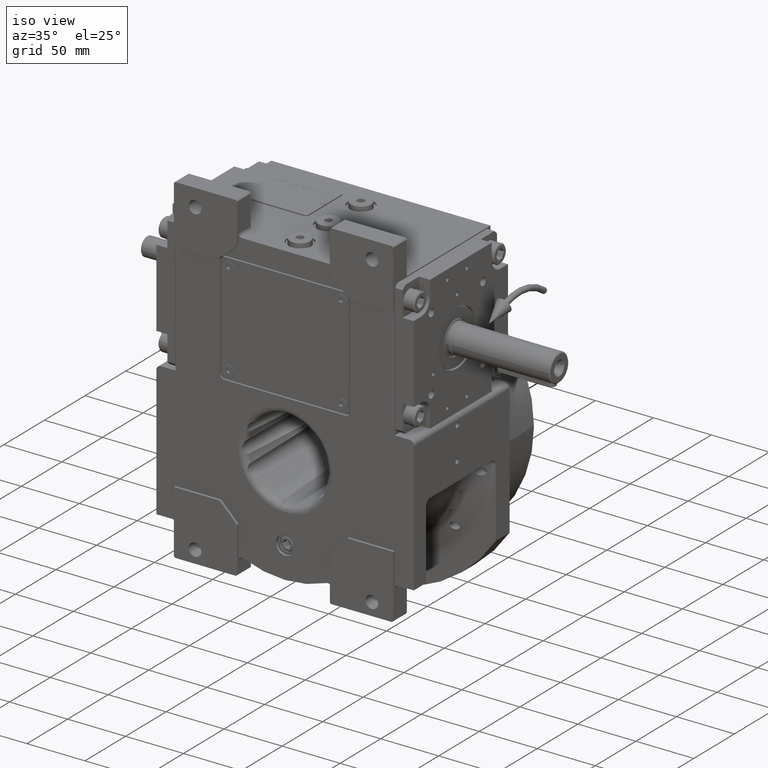
[diagram: clean part render]
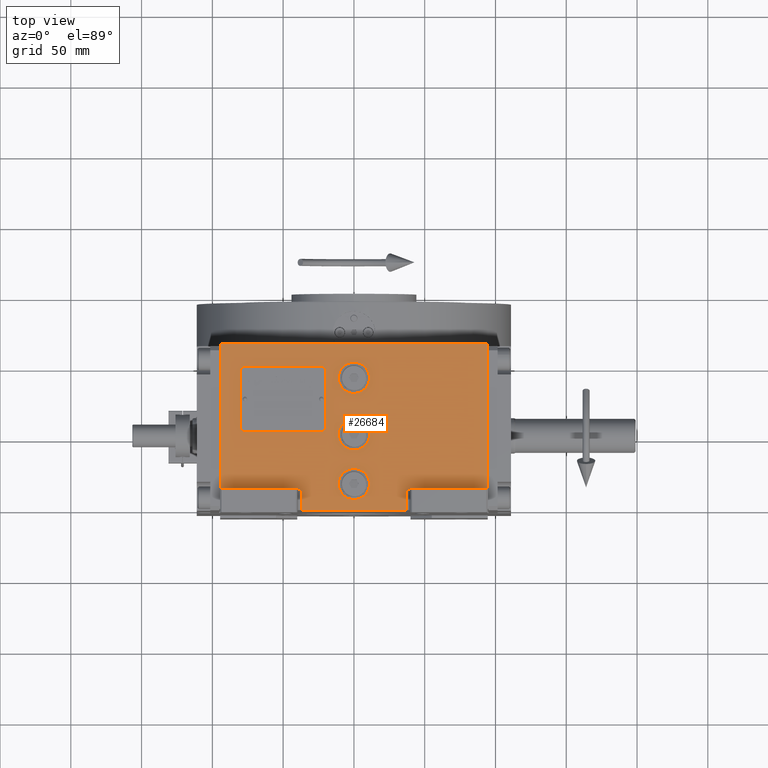
[diagram: tour spotlight — one face highlighted and labeled with its STEP entity id]
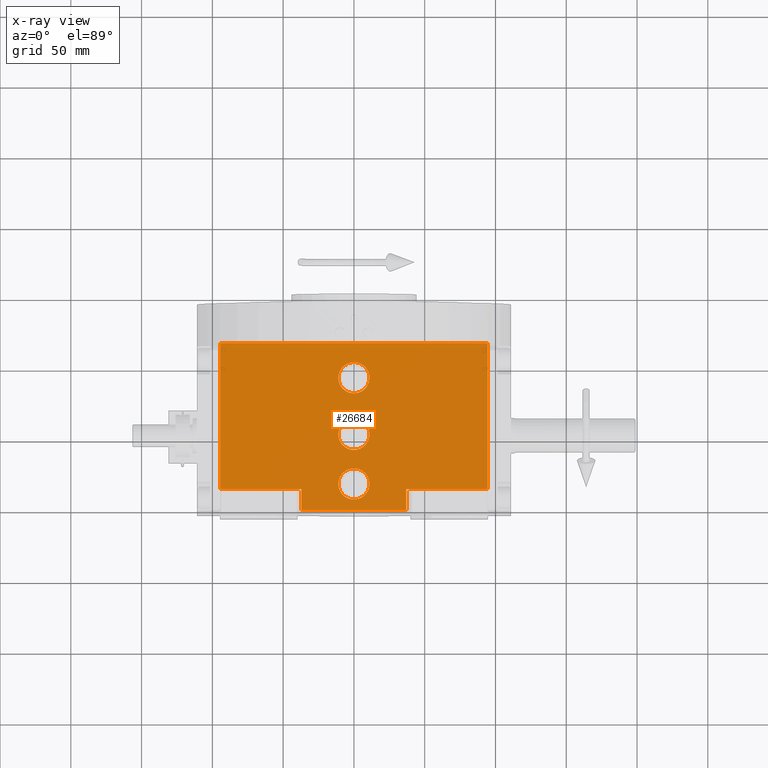
[diagram: x-ray of the same camera — body ghosted, this tour face saturated]
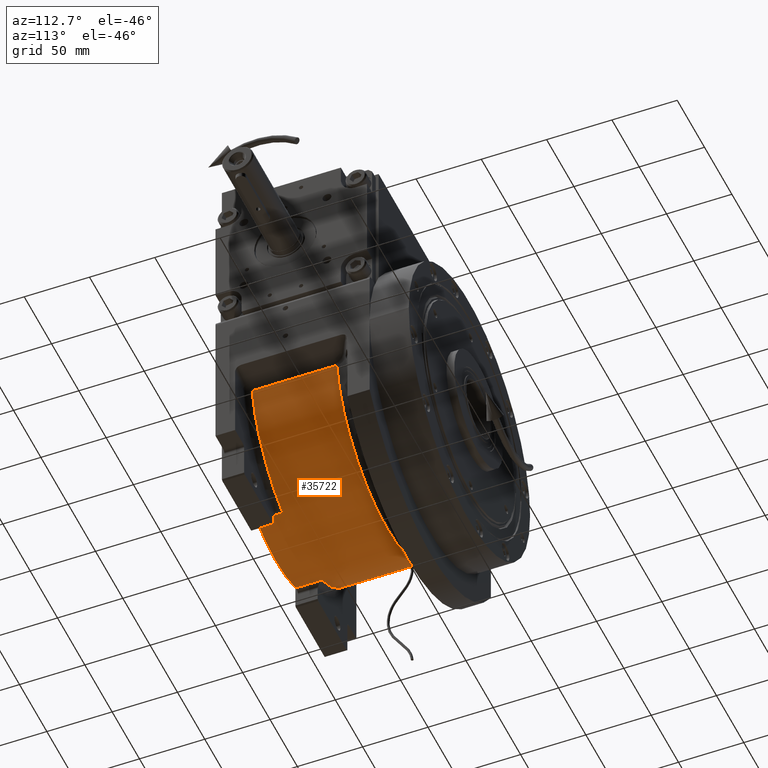
[diagram: tour spotlight — one face highlighted and labeled with its STEP entity id]
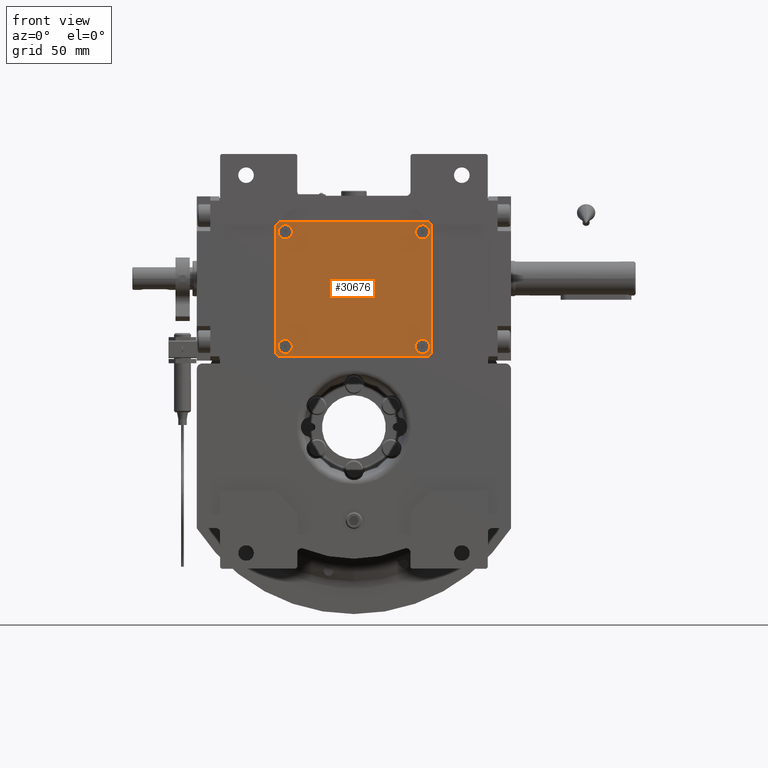
[diagram: tour spotlight — one face highlighted and labeled with its STEP entity id]
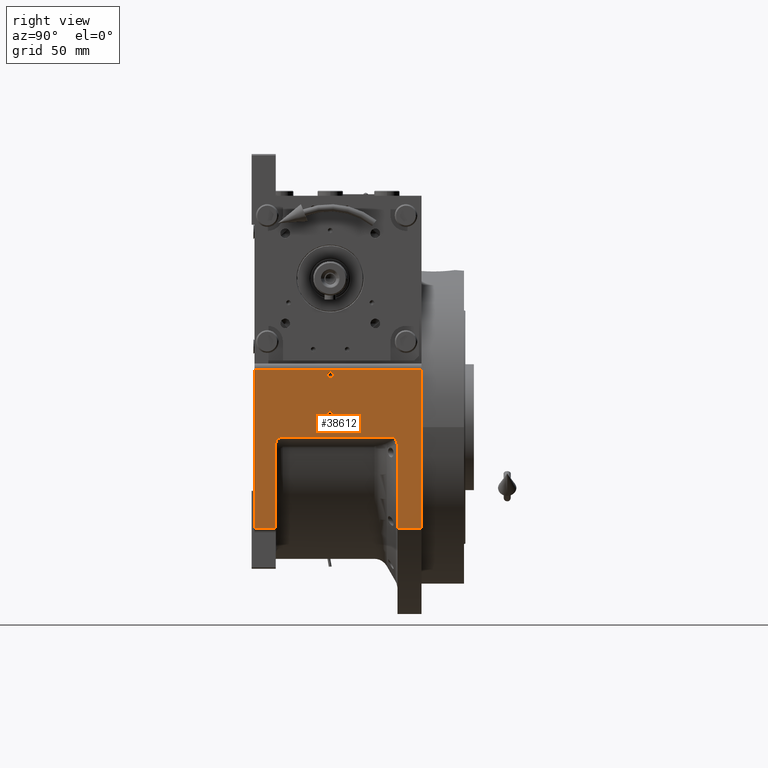
[diagram: tour spotlight — one face highlighted and labeled with its STEP entity id]
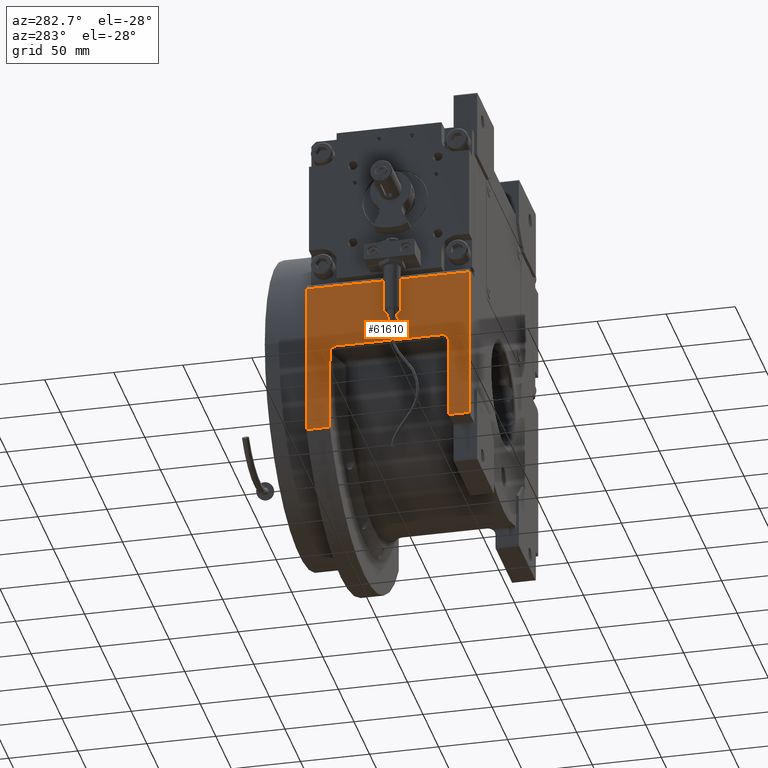
[diagram: tour spotlight — one face highlighted and labeled with its STEP entity id]
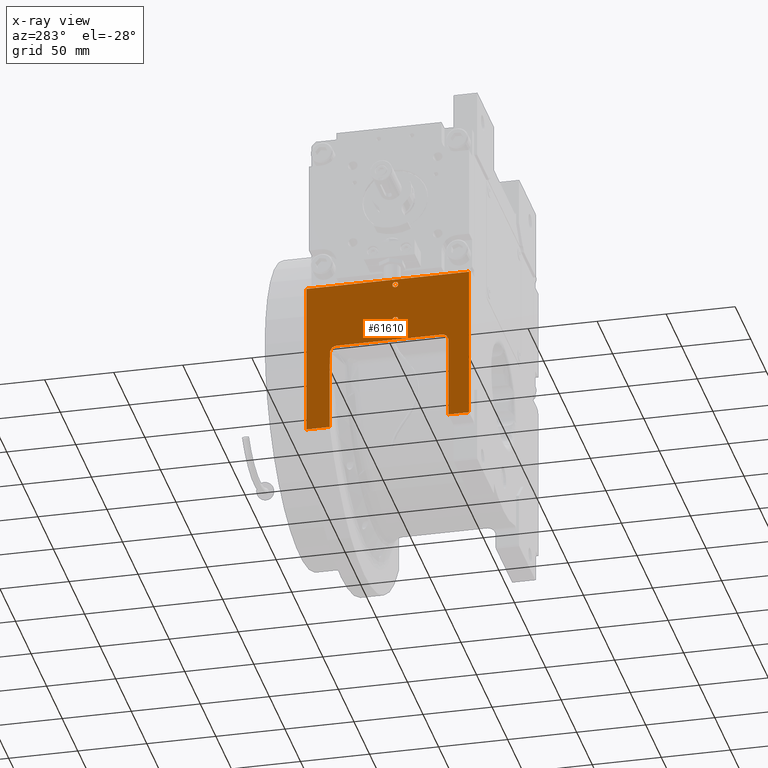
[diagram: x-ray of the same camera — body ghosted, this tour face saturated]
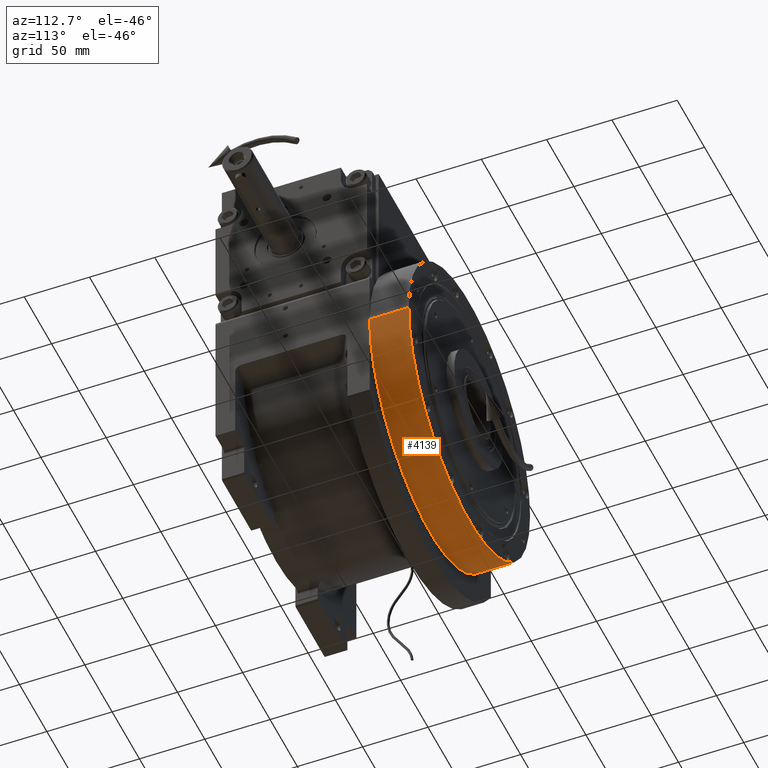
[diagram: tour spotlight — one face highlighted and labeled with its STEP entity id]
A machine part: a face-by-face anatomy tour. The part has 2167 B-rep faces; the first image is the clean iso view, then the 6 largest visible faces are spotlighted one at a time (largest first), each with its STEP entity span.

Face 1 — top view, entity #26684. An x-ray twin of the same camera follows (body ghosted, this face saturated) — the face is partly hidden behind the body. In plain terms, the highlighted planar face has unit normal (0, 0, 1).
Definition (entity closure, byte-faithful):
#107 = ORIENTED_EDGE ( 'NONE', *, *, #43515, .F. ) ;
#995 = EDGE_CURVE ( 'NONE', #52223, #6601, #46901, .T. ) ;
#2281 = VECTOR ( 'NONE', #55261, 1000.000000000000000 ) ;
#2545 = CARTESIAN_POINT ( 'NONE',  ( 36.99999999999934630, -38.50000000000000000, 163.5000000000000000 ) ) ;
#2549 = VERTEX_POINT ( 'NONE', #8123 ) ;
#2800 = VERTEX_POINT ( 'NONE', #24387 ) ;
#2884 = CARTESIAN_POINT ( 'NONE',  ( -36.99999999999929656, -53.50000000000000000, 163.5000000000000000 ) ) ;
#2922 = ORIENTED_EDGE ( 'NONE', *, *, #40360, .F. ) ;
#3017 = EDGE_CURVE ( 'NONE', #24030, #56173, #19945, .T. ) ;
#3325 = CARTESIAN_POINT ( 'NONE',  ( 94.50000000000000000, 64.50000000000000000, 163.5000000000000000 ) ) ;
#3583 = CARTESIAN_POINT ( 'NONE',  ( 11.00000000000000000, 40.00000000000000000, 163.5000000000000000 ) ) ;
#4687 = LINE ( 'NONE', #40028, #32905 ) ;
#4885 = DIRECTION ( 'NONE',  ( 0.000000000000000000, 1.000000000000000000, 0.000000000000000000 ) ) ;
#5394 = VECTOR ( 'NONE', #70473, 1000.000000000000000 ) ;
#5573 = DIRECTION ( 'NONE',  ( 1.000000000000000000, 0.000000000000000000, 0.000000000000000000 ) ) ;
#6601 = VERTEX_POINT ( 'NONE', #48692 ) ;
#8123 = CARTESIAN_POINT ( 'NONE',  ( -94.50000000000000000, 64.50000000000000000, 163.5000000000000000 ) ) ;
#9553 = EDGE_CURVE ( 'NONE', #45362, #13133, #64331, .T. ) ;
#9820 = DIRECTION ( 'NONE',  ( 0.000000000000000000, 0.000000000000000000, 1.000000000000000000 ) ) ;
#10401 = DIRECTION ( 'NONE',  ( 0.000000000000000000, 1.000000000000000000, 0.000000000000000000 ) ) ;
#10900 = DIRECTION ( 'NONE',  ( 0.000000000000000000, 0.000000000000000000, 1.000000000000000000 ) ) ;
#11000 = DIRECTION ( 'NONE',  ( 0.000000000000000000, 0.000000000000000000, 1.000000000000000000 ) ) ;
#11430 = VECTOR ( 'NONE', #23642, 1000.000000000000000 ) ;
#13133 = VERTEX_POINT ( 'NONE', #47713 ) ;
#13332 = CIRCLE ( 'NONE', #53420, 11.00000000000000000 ) ;
#13357 = EDGE_LOOP ( 'NONE', ( #24443, #14341 ) ) ;
#13717 = DIRECTION ( 'NONE',  ( -1.000000000000000000, 0.000000000000000000, 0.000000000000000000 ) ) ;
#13931 = EDGE_LOOP ( 'NONE', ( #33136, #22214, #35140, #70710, #67691, #24968, #25376, #2922 ) ) ;
#14341 = ORIENTED_EDGE ( 'NONE', *, *, #3017, .F. ) ;
#14600 = CARTESIAN_POINT ( 'NONE',  ( 36.99999999999934630, -38.50000000000000000, 163.5000000000000000 ) ) ;
#14808 = CARTESIAN_POINT ( 'NONE',  ( 11.00000000000000000, -1.179289943096200059E-15, 163.5000000000000000 ) ) ;
#15361 = CARTESIAN_POINT ( 'NONE',  ( -11.00000000000000000, 40.00000000000000000, 163.5000000000000000 ) ) ;
#15659 = AXIS2_PLACEMENT_3D ( 'NONE', #27749, #50926, #74101 ) ;
#15838 = PLANE ( 'NONE',  #34536 ) ;
#16084 = ORIENTED_EDGE ( 'NONE', *, *, #16153, .F. ) ;
#16153 = EDGE_CURVE ( 'NONE', #42090, #43376, #13332, .T. ) ;
#16279 = CARTESIAN_POINT ( 'NONE',  ( -36.99999999999929656, -53.50000000000000000, 163.5000000000000000 ) ) ;
#17183 = LINE ( 'NONE', #40390, #11430 ) ;
#17354 = EDGE_LOOP ( 'NONE', ( #107, #16084 ) ) ;
#18846 = CARTESIAN_POINT ( 'NONE',  ( 11.00000000000000000, -35.00000000000000000, 163.5000000000000000 ) ) ;
#19334 = EDGE_LOOP ( 'NONE', ( #31108, #23657 ) ) ;
#19945 = CIRCLE ( 'NONE', #67311, 11.00000000000000000 ) ;
#21226 = CARTESIAN_POINT ( 'NONE',  ( -36.99999999999929656, -38.50000000000000000, 163.5000000000000000 ) ) ;
#22214 = ORIENTED_EDGE ( 'NONE', *, *, #49768, .F. ) ;
#23642 = DIRECTION ( 'NONE',  ( 1.000000000000000000, 0.000000000000000000, 0.000000000000000000 ) ) ;
#23657 = ORIENTED_EDGE ( 'NONE', *, *, #31170, .F. ) ;
#24030 = VERTEX_POINT ( 'NONE', #15361 ) ;
#24387 = CARTESIAN_POINT ( 'NONE',  ( 94.50000000000000000, -38.50000000000000000, 163.5000000000000000 ) ) ;
#24443 = ORIENTED_EDGE ( 'NONE', *, *, #66057, .F. ) ;
#24968 = ORIENTED_EDGE ( 'NONE', *, *, #62182, .F. ) ;
#25376 = ORIENTED_EDGE ( 'NONE', *, *, #69504, .T. ) ;
#26684 = ADVANCED_FACE ( 'NONE', ( #74713, #73596, #74338, #69042 ), #15838, .T. ) ;
#27690 = LINE ( 'NONE', #16279, #49786 ) ;
#27749 = CARTESIAN_POINT ( 'NONE',  ( 0.000000000000000000, -35.00000000000000000, 163.5000000000000000 ) ) ;
#27978 = CARTESIAN_POINT ( 'NONE',  ( -94.50000000000000000, -38.50000000000000000, 163.5000000000000000 ) ) ;
#29424 = DIRECTION ( 'NONE',  ( 0.000000000000000000, 0.000000000000000000, 1.000000000000000000 ) ) ;
#29554 = VECTOR ( 'NONE', #71352, 1000.000000000000000 ) ;
#29620 = VERTEX_POINT ( 'NONE', #3325 ) ;
#31108 = ORIENTED_EDGE ( 'NONE', *, *, #9553, .F. ) ;
#31170 = EDGE_CURVE ( 'NONE', #13133, #45362, #72676, .T. ) ;
#31566 = AXIS2_PLACEMENT_3D ( 'NONE', #38695, #9820, #57286 ) ;
#32307 = DIRECTION ( 'NONE',  ( 0.000000000000000000, 0.000000000000000000, 1.000000000000000000 ) ) ;
#32905 = VECTOR ( 'NONE', #10401, 1000.000000000000000 ) ;
#33136 = ORIENTED_EDGE ( 'NONE', *, *, #995, .T. ) ;
#34377 = CIRCLE ( 'NONE', #65930, 11.00000000000000000 ) ;
#34428 = CARTESIAN_POINT ( 'NONE',  ( -94.50000000000000000, -53.50000000000000000, 163.5000000000000000 ) ) ;
#34536 = AXIS2_PLACEMENT_3D ( 'NONE', #34428, #10900, #5573 ) ;
#34832 = EDGE_CURVE ( 'NONE', #2800, #29620, #4687, .T. ) ;
#35124 = CARTESIAN_POINT ( 'NONE',  ( 0.000000000000000000, 0.000000000000000000, 163.5000000000000000 ) ) ;
#35140 = ORIENTED_EDGE ( 'NONE', *, *, #64677, .T. ) ;
#35756 = DIRECTION ( 'NONE',  ( 1.000000000000000000, 0.000000000000000000, 0.000000000000000000 ) ) ;
#38150 = LINE ( 'NONE', #14600, #2281 ) ;
#38695 = CARTESIAN_POINT ( 'NONE',  ( 0.000000000000000000, -35.00000000000000000, 163.5000000000000000 ) ) ;
#40028 = CARTESIAN_POINT ( 'NONE',  ( 94.50000000000000000, -38.50000000000000000, 163.5000000000000000 ) ) ;
#40360 = EDGE_CURVE ( 'NONE', #52223, #74716, #27690, .T. ) ;
#40390 = CARTESIAN_POINT ( 'NONE',  ( -94.50000000000000000, 64.50000000000000000, 163.5000000000000000 ) ) ;
#42090 = VERTEX_POINT ( 'NONE', #60412 ) ;
#42480 = DIRECTION ( 'NONE',  ( 1.000000000000000000, 0.000000000000000000, 0.000000000000000000 ) ) ;
#42589 = CARTESIAN_POINT ( 'NONE',  ( 0.000000000000000000, 40.00000000000000000, 163.5000000000000000 ) ) ;
#43357 = DIRECTION ( 'NONE',  ( 0.000000000000000000, 0.000000000000000000, 1.000000000000000000 ) ) ;
#43376 = VERTEX_POINT ( 'NONE', #14808 ) ;
#43515 = EDGE_CURVE ( 'NONE', #43376, #42090, #34377, .T. ) ;
#45362 = VERTEX_POINT ( 'NONE', #18846 ) ;
#46250 = EDGE_CURVE ( 'NONE', #2549, #29620, #17183, .T. ) ;
#46789 = CARTESIAN_POINT ( 'NONE',  ( 36.99999999999934630, -38.50000000000000000, 163.5000000000000000 ) ) ;
#46901 = LINE ( 'NONE', #48016, #5394 ) ;
#47713 = CARTESIAN_POINT ( 'NONE',  ( -11.00000000000000000, -35.00000000000000000, 163.5000000000000000 ) ) ;
#48016 = CARTESIAN_POINT ( 'NONE',  ( -36.99999999999929656, -53.50000000000000000, 163.5000000000000000 ) ) ;
#48164 = CARTESIAN_POINT ( 'NONE',  ( -94.50000000000000000, -38.50000000000000000, 163.5000000000000000 ) ) ;
#48692 = CARTESIAN_POINT ( 'NONE',  ( 36.99999999999934630, -53.50000000000000000, 163.5000000000000000 ) ) ;
#49768 = EDGE_CURVE ( 'NONE', #70751, #6601, #38150, .T. ) ;
#49774 = DIRECTION ( 'NONE',  ( 1.000000000000000000, 0.000000000000000000, 0.000000000000000000 ) ) ;
#49786 = VECTOR ( 'NONE', #4885, 1000.000000000000000 ) ;
#49946 = CIRCLE ( 'NONE', #59662, 11.00000000000000000 ) ;
#50926 = DIRECTION ( 'NONE',  ( 0.000000000000000000, 0.000000000000000000, 1.000000000000000000 ) ) ;
#51467 = DIRECTION ( 'NONE',  ( -1.000000000000000000, 0.000000000000000000, 0.000000000000000000 ) ) ;
#52223 = VERTEX_POINT ( 'NONE', #2884 ) ;
#53420 = AXIS2_PLACEMENT_3D ( 'NONE', #35124, #29424, #51467 ) ;
#54487 = VERTEX_POINT ( 'NONE', #70178 ) ;
#54682 = VECTOR ( 'NONE', #35756, 1000.000000000000000 ) ;
#55261 = DIRECTION ( 'NONE',  ( 0.000000000000000000, -1.000000000000000000, 0.000000000000000000 ) ) ;
#55672 = VECTOR ( 'NONE', #67882, 1000.000000000000000 ) ;
#56173 = VERTEX_POINT ( 'NONE', #3583 ) ;
#57286 = DIRECTION ( 'NONE',  ( 1.000000000000000000, 0.000000000000000000, 0.000000000000000000 ) ) ;
#58560 = LINE ( 'NONE', #46789, #54682 ) ;
#59662 = AXIS2_PLACEMENT_3D ( 'NONE', #42589, #32307, #49774 ) ;
#60412 = CARTESIAN_POINT ( 'NONE',  ( -11.00000000000000000, 0.000000000000000000, 163.5000000000000000 ) ) ;
#62182 = EDGE_CURVE ( 'NONE', #54487, #2549, #74702, .T. ) ;
#63040 = CARTESIAN_POINT ( 'NONE',  ( 0.000000000000000000, 0.000000000000000000, 163.5000000000000000 ) ) ;
#64331 = CIRCLE ( 'NONE', #31566, 11.00000000000000000 ) ;
#64508 = LINE ( 'NONE', #48164, #29554 ) ;
#64677 = EDGE_CURVE ( 'NONE', #70751, #2800, #58560, .T. ) ;
#65930 = AXIS2_PLACEMENT_3D ( 'NONE', #63040, #11000, #42480 ) ;
#66057 = EDGE_CURVE ( 'NONE', #56173, #24030, #49946, .T. ) ;
#66904 = CARTESIAN_POINT ( 'NONE',  ( 0.000000000000000000, 40.00000000000000000, 163.5000000000000000 ) ) ;
#67311 = AXIS2_PLACEMENT_3D ( 'NONE', #66904, #43357, #13717 ) ;
#67691 = ORIENTED_EDGE ( 'NONE', *, *, #46250, .F. ) ;
#67882 = DIRECTION ( 'NONE',  ( 0.000000000000000000, 1.000000000000000000, 0.000000000000000000 ) ) ;
#69042 = FACE_OUTER_BOUND ( 'NONE', #13931, .T. ) ;
#69504 = EDGE_CURVE ( 'NONE', #54487, #74716, #64508, .T. ) ;
#70178 = CARTESIAN_POINT ( 'NONE',  ( -94.50000000000000000, -38.50000000000000000, 163.5000000000000000 ) ) ;
#70473 = DIRECTION ( 'NONE',  ( 1.000000000000000000, 0.000000000000000000, 0.000000000000000000 ) ) ;
#70710 = ORIENTED_EDGE ( 'NONE', *, *, #34832, .T. ) ;
#70751 = VERTEX_POINT ( 'NONE', #2545 ) ;
#71352 = DIRECTION ( 'NONE',  ( 1.000000000000000000, 0.000000000000000000, 0.000000000000000000 ) ) ;
#72676 = CIRCLE ( 'NONE', #15659, 11.00000000000000000 ) ;
#73596 = FACE_BOUND ( 'NONE', #19334, .T. ) ;
#74101 = DIRECTION ( 'NONE',  ( -1.000000000000000000, 0.000000000000000000, 0.000000000000000000 ) ) ;
#74338 = FACE_BOUND ( 'NONE', #13357, .T. ) ;
#74702 = LINE ( 'NONE', #27978, #55672 ) ;
#74713 = FACE_BOUND ( 'NONE', #17354, .T. ) ;
#74716 = VERTEX_POINT ( 'NONE', #21226 ) ;

Face 2 — auxiliary view, entity #35722. In plain terms, the highlighted cylindrical surface (partial cylindrical patch) has radius 93 mm, axis along (0, 1, 0).
Definition (entity closure, byte-faithful):
#169 = DIRECTION ( 'NONE',  ( 0.000000000000000000, 0.000000000000000000, 1.000000000000000000 ) ) ;
#2040 = VECTOR ( 'NONE', #13656, 1000.000000000000000 ) ;
#2643 = DIRECTION ( 'NONE',  ( -0.3854166666666672403, 0.000000000000000000, -0.9227426472508764022 ) ) ;
#5305 = DIRECTION ( 'NONE',  ( -0.3854166666666659080, 0.000000000000000000, -0.9227426472508768462 ) ) ;
#9798 = ORIENTED_EDGE ( 'NONE', *, *, #28388, .F. ) ;
#9993 = CARTESIAN_POINT ( 'NONE',  ( 35.84375000000000000, -53.50000000000000000, -85.81506619433150718 ) ) ;
#10540 = CIRCLE ( 'NONE', #36010, 92.99999999999995737 ) ;
#10855 = DIRECTION ( 'NONE',  ( 5.743225055535190204E-15, 1.000000000000000000, 2.439003765979129920E-14 ) ) ;
#11057 = CARTESIAN_POINT ( 'NONE',  ( -91.75016228508779648, -33.50000000000000000, -15.19564808292360070 ) ) ;
#13534 = ORIENTED_EDGE ( 'NONE', *, *, #33215, .F. ) ;
#13656 = DIRECTION ( 'NONE',  ( 0.000000000000000000, 1.000000000000000000, 0.000000000000000000 ) ) ;
#14891 = LINE ( 'NONE', #56696, #27370 ) ;
#17778 = DIRECTION ( 'NONE',  ( 0.000000000000000000, 1.000000000000000000, 0.000000000000000000 ) ) ;
#18319 = AXIS2_PLACEMENT_3D ( 'NONE', #74790, #17778, #64879 ) ;
#20147 = EDGE_CURVE ( 'NONE', #23686, #34594, #14891, .T. ) ;
#21030 = CIRCLE ( 'NONE', #63512, 93.00000000000001421 ) ;
#22127 = ORIENTED_EDGE ( 'NONE', *, *, #46785, .T. ) ;
#22197 = CARTESIAN_POINT ( 'NONE',  ( -4.517455316885850268E-28, -53.50000000000000000, 0.000000000000000000 ) ) ;
#23361 = CARTESIAN_POINT ( 'NONE',  ( 91.75016228501930016, 31.21878281274259948, -15.19564808333685058 ) ) ;
#23686 = VERTEX_POINT ( 'NONE', #65303 ) ;
#25411 = AXIS2_PLACEMENT_3D ( 'NONE', #50752, #10855, #34016 ) ;
#27312 = CARTESIAN_POINT ( 'NONE',  ( 91.75016228514499517, -33.50000000000000000, -15.19564808257825028 ) ) ;
#27370 = VECTOR ( 'NONE', #55566, 1000.000000000000000 ) ;
#28388 = EDGE_CURVE ( 'NONE', #23686, #67118, #10540, .T. ) ;
#30523 = VECTOR ( 'NONE', #64591, 1000.000000000000000 ) ;
#32898 = LINE ( 'NONE', #51123, #63657 ) ;
#33032 = DIRECTION ( 'NONE',  ( 0.000000000000000000, -1.000000000000000000, 0.000000000000000000 ) ) ;
#33215 = EDGE_CURVE ( 'NONE', #33264, #47780, #63057, .T. ) ;
#33264 = VERTEX_POINT ( 'NONE', #23361 ) ;
#34016 = DIRECTION ( 'NONE',  ( 0.9865608847851539132, -1.678764654171103455E-15, -0.1633940654122239822 ) ) ;
#34046 = ORIENTED_EDGE ( 'NONE', *, *, #20147, .T. ) ;
#34594 = VERTEX_POINT ( 'NONE', #41973 ) ;
#35443 = EDGE_CURVE ( 'NONE', #60216, #67118, #47126, .T. ) ;
#35722 = ADVANCED_FACE ( 'NONE', ( #51466 ), #45019, .T. ) ;
#36010 = AXIS2_PLACEMENT_3D ( 'NONE', #49002, #33032, #2643 ) ;
#36589 = EDGE_CURVE ( 'NONE', #34594, #60390, #21030, .T. ) ;
#39039 = AXIS2_PLACEMENT_3D ( 'NONE', #22197, #39322, #169 ) ;
#39141 = ORIENTED_EDGE ( 'NONE', *, *, #36589, .T. ) ;
#39322 = DIRECTION ( 'NONE',  ( 0.000000000000000000, 1.000000000000000000, 0.000000000000000000 ) ) ;
#40457 = EDGE_CURVE ( 'NONE', #52579, #60216, #46214, .T. ) ;
#41417 = CARTESIAN_POINT ( 'NONE',  ( 35.84375000000000000, -33.50000000000000000, -85.81506619433150718 ) ) ;
#41973 = CARTESIAN_POINT ( 'NONE',  ( -35.84375000000000000, -33.50000000000000000, -85.81506619433150718 ) ) ;
#42543 = LINE ( 'NONE', #65706, #2040 ) ;
#43479 = ORIENTED_EDGE ( 'NONE', *, *, #49488, .T. ) ;
#45019 = CYLINDRICAL_SURFACE ( 'NONE', #39039, 93.00000000000000000 ) ;
#46214 = CIRCLE ( 'NONE', #18319, 93.00000000000001421 ) ;
#46785 = EDGE_CURVE ( 'NONE', #33264, #52579, #32898, .T. ) ;
#47126 = LINE ( 'NONE', #41417, #30523 ) ;
#47780 = VERTEX_POINT ( 'NONE', #52069 ) ;
#49002 = CARTESIAN_POINT ( 'NONE',  ( 1.421085471520200056E-14, -53.50000000000000000, -4.263256414560599853E-14 ) ) ;
#49439 = CARTESIAN_POINT ( 'NONE',  ( 35.84375000000000000, -33.50000000000000000, -85.81506619433150718 ) ) ;
#49488 = EDGE_CURVE ( 'NONE', #60390, #47780, #42543, .T. ) ;
#50752 = CARTESIAN_POINT ( 'NONE',  ( 1.421085471520200056E-14, 31.21878281274215183, 0.000000000000000000 ) ) ;
#51123 = CARTESIAN_POINT ( 'NONE',  ( 91.75016228501930016, 31.21878281274199907, -15.19564808333685058 ) ) ;
#51466 = FACE_OUTER_BOUND ( 'NONE', #74521, .T. ) ;
#52069 = CARTESIAN_POINT ( 'NONE',  ( -91.75030103113060420, 31.21878279875124917, -15.19503959111690072 ) ) ;
#52579 = VERTEX_POINT ( 'NONE', #27312 ) ;
#55566 = DIRECTION ( 'NONE',  ( 1.776356839400250070E-15, 1.000000000000000000, -7.105427357601000281E-16 ) ) ;
#56074 = DIRECTION ( 'NONE',  ( 0.000000000000000000, -1.000000000000000000, 0.000000000000000000 ) ) ;
#56627 = DIRECTION ( 'NONE',  ( 0.000000000000000000, 1.000000000000000000, 0.000000000000000000 ) ) ;
#56696 = CARTESIAN_POINT ( 'NONE',  ( -35.84375000000000000, -53.50000000000000000, -85.81506619433150718 ) ) ;
#57002 = CARTESIAN_POINT ( 'NONE',  ( -5.684341886080798963E-14, -33.50000000000000000, -4.973799150320699408E-14 ) ) ;
#60216 = VERTEX_POINT ( 'NONE', #49439 ) ;
#60390 = VERTEX_POINT ( 'NONE', #11057 ) ;
#63057 = CIRCLE ( 'NONE', #25411, 93.00000000000001421 ) ;
#63512 = AXIS2_PLACEMENT_3D ( 'NONE', #57002, #56627, #5305 ) ;
#63657 = VECTOR ( 'NONE', #56074, 1000.000000000000000 ) ;
#64591 = DIRECTION ( 'NONE',  ( 0.000000000000000000, -1.000000000000000000, 0.000000000000000000 ) ) ;
#64879 = DIRECTION ( 'NONE',  ( 0.9865608847878558629, 0.000000000000000000, -0.1633940653959109757 ) ) ;
#65303 = CARTESIAN_POINT ( 'NONE',  ( -35.84375000000000000, -53.50000000000000000, -85.81506619433150718 ) ) ;
#65706 = CARTESIAN_POINT ( 'NONE',  ( -91.75016228501930016, -33.50000000000000000, -15.19564808333695183 ) ) ;
#67118 = VERTEX_POINT ( 'NONE', #9993 ) ;
#71294 = ORIENTED_EDGE ( 'NONE', *, *, #40457, .T. ) ;
#74521 = EDGE_LOOP ( 'NONE', ( #9798, #34046, #39141, #43479, #13534, #22127, #71294, #74633 ) ) ;
#74633 = ORIENTED_EDGE ( 'NONE', *, *, #35443, .T. ) ;
#74790 = CARTESIAN_POINT ( 'NONE',  ( 1.421085471520200056E-14, -33.50000000000000000, 1.421085471520200056E-14 ) ) ;

Face 3 — front view, entity #30676. In plain terms, the highlighted planar face has unit normal (0, -1, -0).
Definition (entity closure, byte-faithful):
#1266 = DIRECTION ( 'NONE',  ( -1.000000000000000000, -1.541976423090496028E-15, 0.000000000000000000 ) ) ;
#1542 = VECTOR ( 'NONE', #10464, 1000.000000000000114 ) ;
#2062 = VERTEX_POINT ( 'NONE', #29608 ) ;
#2548 = ORIENTED_EDGE ( 'NONE', *, *, #30169, .T. ) ;
#2581 = DIRECTION ( 'NONE',  ( 0.7071067811865474617, 0.7071067811865474617, 9.367723249499506431E-31 ) ) ;
#2962 = VERTEX_POINT ( 'NONE', #8036 ) ;
#3262 = VERTEX_POINT ( 'NONE', #30009 ) ;
#3478 = VERTEX_POINT ( 'NONE', #68717 ) ;
#3643 = CARTESIAN_POINT ( 'NONE',  ( -54.99999999999973710, 45.50000000000000000, 3.000000000000266454 ) ) ;
#4403 = DIRECTION ( 'NONE',  ( -9.367723249499515189E-31, -1.000000000000000000, 0.000000000000000000 ) ) ;
#5734 = CARTESIAN_POINT ( 'NONE',  ( -52.99999999999973710, 47.50000000000000000, 3.000000000000259348 ) ) ;
#6286 = VERTEX_POINT ( 'NONE', #44575 ) ;
#6664 = AXIS2_PLACEMENT_3D ( 'NONE', #19099, #72296, #1266 ) ;
#7549 = CARTESIAN_POINT ( 'NONE',  ( 55.00000000000000000, -45.50000000000000000, 3.000000000000002665 ) ) ;
#7556 = ORIENTED_EDGE ( 'NONE', *, *, #16313, .T. ) ;
#8036 = CARTESIAN_POINT ( 'NONE',  ( 44.00000000000026290, -40.50000000000000000, 2.999999999999995559 ) ) ;
#8090 = EDGE_CURVE ( 'NONE', #21296, #48525, #29987, .T. ) ;
#8207 = LINE ( 'NONE', #37457, #34987 ) ;
#8850 = DIRECTION ( 'NONE',  ( 1.000000000000000000, 9.367723249499515189E-31, 9.255241265799875595E-31 ) ) ;
#9148 = AXIS2_PLACEMENT_3D ( 'NONE', #56830, #74666, #75039 ) ;
#9782 = VECTOR ( 'NONE', #30061, 1000.000000000000000 ) ;
#10343 = DIRECTION ( 'NONE',  ( -1.000000000000000000, -1.541976423090496028E-15, 0.000000000000000000 ) ) ;
#10464 = DIRECTION ( 'NONE',  ( 0.7071067811865474617, -0.7071067811865474617, 3.697785493223490101E-32 ) ) ;
#11015 = EDGE_CURVE ( 'NONE', #6286, #67762, #73174, .T. ) ;
#11024 = DIRECTION ( 'NONE',  ( 1.000000000000000000, 1.541976423090496028E-15, 0.000000000000000000 ) ) ;
#11089 = CARTESIAN_POINT ( 'NONE',  ( 48.50000000000026290, 40.49999999999999289, 3.000000000000002665 ) ) ;
#11629 = EDGE_CURVE ( 'NONE', #67725, #6286, #33694, .T. ) ;
#12675 = CIRCLE ( 'NONE', #55135, 4.499999999999997335 ) ;
#12786 = ORIENTED_EDGE ( 'NONE', *, *, #11629, .T. ) ;
#12961 = EDGE_LOOP ( 'NONE', ( #54098, #62847 ) ) ;
#13279 = CARTESIAN_POINT ( 'NONE',  ( -48.49999999999973710, 40.49999999999999289, 3.000000000000259348 ) ) ;
#13790 = DIRECTION ( 'NONE',  ( 1.000000000000000000, 9.367723249499515189E-31, 9.255241265799875595E-31 ) ) ;
#13796 = PLANE ( 'NONE',  #14356 ) ;
#14356 = AXIS2_PLACEMENT_3D ( 'NONE', #66611, #14551, #8850 ) ;
#14551 = DIRECTION ( 'NONE',  ( -9.255241265799875595E-31, -1.734010775707216474E-60, 1.000000000000000000 ) ) ;
#14684 = EDGE_CURVE ( 'NONE', #67762, #27438, #39333, .T. ) ;
#15356 = VECTOR ( 'NONE', #13790, 1000.000000000000000 ) ;
#15677 = AXIS2_PLACEMENT_3D ( 'NONE', #43448, #20996, #73068 ) ;
#16313 = EDGE_CURVE ( 'NONE', #27438, #2062, #65479, .T. ) ;
#17240 = EDGE_CURVE ( 'NONE', #2062, #23577, #72515, .T. ) ;
#17805 = CARTESIAN_POINT ( 'NONE',  ( 48.50000000000026290, 40.49999999999999289, 3.000000000000002665 ) ) ;
#19099 = CARTESIAN_POINT ( 'NONE',  ( 48.50000000000026290, -40.50000000000000000, 2.999999999999738876 ) ) ;
#19498 = FACE_BOUND ( 'NONE', #62802, .T. ) ;
#19791 = VERTEX_POINT ( 'NONE', #63587 ) ;
#20154 = ORIENTED_EDGE ( 'NONE', *, *, #8090, .T. ) ;
#20802 = VERTEX_POINT ( 'NONE', #47066 ) ;
#20996 = DIRECTION ( 'NONE',  ( 9.255241265799875595E-31, 0.000000000000000000, 1.000000000000000000 ) ) ;
#21296 = VERTEX_POINT ( 'NONE', #42305 ) ;
#22281 = AXIS2_PLACEMENT_3D ( 'NONE', #74094, #39904, #11024 ) ;
#22386 = DIRECTION ( 'NONE',  ( 1.000000000000000000, 1.541976423090496028E-15, 0.000000000000000000 ) ) ;
#23577 = VERTEX_POINT ( 'NONE', #7549 ) ;
#24603 = CIRCLE ( 'NONE', #40414, 4.499999999999997335 ) ;
#27438 = VERTEX_POINT ( 'NONE', #73042 ) ;
#28575 = CIRCLE ( 'NONE', #9148, 4.499999999999997335 ) ;
#28911 = CARTESIAN_POINT ( 'NONE',  ( -55.00000000000000000, -45.49999999999973710, 3.000000000000266454 ) ) ;
#28979 = VECTOR ( 'NONE', #40643, 1000.000000000000114 ) ;
#29020 = EDGE_CURVE ( 'NONE', #49815, #3478, #32427, .T. ) ;
#29608 = CARTESIAN_POINT ( 'NONE',  ( 53.00000000000000000, -47.50000000000000000, 3.000000000000002665 ) ) ;
#29686 = CARTESIAN_POINT ( 'NONE',  ( 53.00000000000026290, 47.50000000000000000, 3.000000000000002665 ) ) ;
#29829 = AXIS2_PLACEMENT_3D ( 'NONE', #13279, #59630, #61115 ) ;
#29987 = LINE ( 'NONE', #35309, #28979 ) ;
#30009 = CARTESIAN_POINT ( 'NONE',  ( -52.99999999999973710, -40.49999999999973710, 3.000000000000002665 ) ) ;
#30061 = DIRECTION ( 'NONE',  ( -1.000000000000000000, -9.367723249499515189E-31, -9.255241265799875595E-31 ) ) ;
#30126 = VECTOR ( 'NONE', #2581, 1000.000000000000114 ) ;
#30169 = EDGE_CURVE ( 'NONE', #23577, #21296, #8207, .T. ) ;
#30540 = DIRECTION ( 'NONE',  ( 9.255241265799875595E-31, 0.000000000000000000, 1.000000000000000000 ) ) ;
#30676 = ADVANCED_FACE ( 'NONE', ( #48393, #19498, #65853, #43438, #60900 ), #13796, .T. ) ;
#30923 = EDGE_LOOP ( 'NONE', ( #52166, #34645 ) ) ;
#31081 = VERTEX_POINT ( 'NONE', #61948 ) ;
#31468 = CIRCLE ( 'NONE', #15677, 4.499999999999997335 ) ;
#32067 = CARTESIAN_POINT ( 'NONE',  ( 53.00000000000026290, 47.50000000000000000, 3.000000000000002665 ) ) ;
#32427 = CIRCLE ( 'NONE', #67623, 4.499999999999997335 ) ;
#33694 = LINE ( 'NONE', #40526, #58711 ) ;
#34089 = ORIENTED_EDGE ( 'NONE', *, *, #17240, .T. ) ;
#34621 = ORIENTED_EDGE ( 'NONE', *, *, #64638, .T. ) ;
#34645 = ORIENTED_EDGE ( 'NONE', *, *, #48069, .F. ) ;
#34987 = VECTOR ( 'NONE', #49219, 1000.000000000000000 ) ;
#35309 = CARTESIAN_POINT ( 'NONE',  ( 55.00000000000026290, 45.50000000000000000, 3.000000000000002665 ) ) ;
#35561 = DIRECTION ( 'NONE',  ( -0.7071067811865474617, -0.7071067811865474617, -9.367723249499506431E-31 ) ) ;
#36340 = CARTESIAN_POINT ( 'NONE',  ( 53.00000000000026290, 40.49999999999999289, 3.000000000000002665 ) ) ;
#36587 = EDGE_CURVE ( 'NONE', #19791, #3262, #55049, .T. ) ;
#37182 = EDGE_CURVE ( 'NONE', #31081, #2962, #31468, .T. ) ;
#37457 = CARTESIAN_POINT ( 'NONE',  ( 55.00000000000000000, -45.50000000000000000, 3.000000000000002665 ) ) ;
#39333 = LINE ( 'NONE', #62496, #1542 ) ;
#39904 = DIRECTION ( 'NONE',  ( 9.255241265799875595E-31, 0.000000000000000000, 1.000000000000000000 ) ) ;
#40414 = AXIS2_PLACEMENT_3D ( 'NONE', #11089, #57066, #10343 ) ;
#40526 = CARTESIAN_POINT ( 'NONE',  ( -52.99999999999973710, 47.50000000000000000, 3.000000000000259348 ) ) ;
#40643 = DIRECTION ( 'NONE',  ( -0.7071067811865474617, 0.7071067811865474617, -3.697785493223490101E-32 ) ) ;
#42305 = CARTESIAN_POINT ( 'NONE',  ( 55.00000000000026290, 45.50000000000000000, 3.000000000000002665 ) ) ;
#43255 = CARTESIAN_POINT ( 'NONE',  ( 53.00000000000000000, -47.50000000000000000, 3.000000000000002665 ) ) ;
#43438 = FACE_BOUND ( 'NONE', #49587, .T. ) ;
#43448 = CARTESIAN_POINT ( 'NONE',  ( 48.50000000000026290, -40.50000000000000000, 2.999999999999738876 ) ) ;
#44546 = ORIENTED_EDGE ( 'NONE', *, *, #53308, .F. ) ;
#44561 = ORIENTED_EDGE ( 'NONE', *, *, #37182, .F. ) ;
#44575 = CARTESIAN_POINT ( 'NONE',  ( -54.99999999999973710, 45.50000000000000000, 3.000000000000266454 ) ) ;
#45664 = LINE ( 'NONE', #29686, #9782 ) ;
#47066 = CARTESIAN_POINT ( 'NONE',  ( 44.00000000000026290, 40.49999999999999289, 3.000000000000002665 ) ) ;
#48069 = EDGE_CURVE ( 'NONE', #3478, #49815, #51678, .T. ) ;
#48393 = FACE_OUTER_BOUND ( 'NONE', #57597, .T. ) ;
#48525 = VERTEX_POINT ( 'NONE', #32067 ) ;
#49219 = DIRECTION ( 'NONE',  ( 9.367723249499515189E-31, 1.000000000000000000, 0.000000000000000000 ) ) ;
#49363 = ORIENTED_EDGE ( 'NONE', *, *, #51667, .F. ) ;
#49555 = CARTESIAN_POINT ( 'NONE',  ( -43.99999999999973710, 40.49999999999999289, 3.000000000000009770 ) ) ;
#49587 = EDGE_LOOP ( 'NONE', ( #44561, #44546 ) ) ;
#49815 = VERTEX_POINT ( 'NONE', #49555 ) ;
#51667 = EDGE_CURVE ( 'NONE', #20802, #55778, #24603, .T. ) ;
#51678 = CIRCLE ( 'NONE', #29829, 4.499999999999997335 ) ;
#52166 = ORIENTED_EDGE ( 'NONE', *, *, #29020, .F. ) ;
#53308 = EDGE_CURVE ( 'NONE', #2962, #31081, #72184, .T. ) ;
#54098 = ORIENTED_EDGE ( 'NONE', *, *, #36587, .F. ) ;
#55049 = CIRCLE ( 'NONE', #22281, 4.499999999999997335 ) ;
#55135 = AXIS2_PLACEMENT_3D ( 'NONE', #17805, #68772, #22386 ) ;
#55202 = EDGE_CURVE ( 'NONE', #55778, #20802, #12675, .T. ) ;
#55778 = VERTEX_POINT ( 'NONE', #36340 ) ;
#56830 = CARTESIAN_POINT ( 'NONE',  ( -48.49999999999973710, -40.49999999999973710, 3.000000000000002665 ) ) ;
#57066 = DIRECTION ( 'NONE',  ( 9.255241265799875595E-31, 0.000000000000000000, 1.000000000000000000 ) ) ;
#57351 = VECTOR ( 'NONE', #4403, 1000.000000000000000 ) ;
#57597 = EDGE_LOOP ( 'NONE', ( #2548, #20154, #34621, #12786, #58119, #60863, #7556, #34089 ) ) ;
#57925 = CARTESIAN_POINT ( 'NONE',  ( -48.49999999999973710, 40.49999999999999289, 3.000000000000259348 ) ) ;
#58119 = ORIENTED_EDGE ( 'NONE', *, *, #11015, .T. ) ;
#58711 = VECTOR ( 'NONE', #35561, 1000.000000000000114 ) ;
#59630 = DIRECTION ( 'NONE',  ( 9.255241265799875595E-31, 0.000000000000000000, 1.000000000000000000 ) ) ;
#60863 = ORIENTED_EDGE ( 'NONE', *, *, #14684, .T. ) ;
#60900 = FACE_BOUND ( 'NONE', #12961, .T. ) ;
#61115 = DIRECTION ( 'NONE',  ( -1.000000000000000000, -1.541976423090496028E-15, 0.000000000000000000 ) ) ;
#61948 = CARTESIAN_POINT ( 'NONE',  ( 53.00000000000026290, -40.50000000000000000, 2.999999999999738876 ) ) ;
#62496 = CARTESIAN_POINT ( 'NONE',  ( -55.00000000000000000, -45.49999999999973710, 3.000000000000266454 ) ) ;
#62802 = EDGE_LOOP ( 'NONE', ( #73330, #49363 ) ) ;
#62847 = ORIENTED_EDGE ( 'NONE', *, *, #71840, .F. ) ;
#63587 = CARTESIAN_POINT ( 'NONE',  ( -43.99999999999973710, -40.49999999999973710, 2.999999999999995559 ) ) ;
#63990 = DIRECTION ( 'NONE',  ( 1.000000000000000000, 1.541976423090496028E-15, 0.000000000000000000 ) ) ;
#64638 = EDGE_CURVE ( 'NONE', #48525, #67725, #45664, .T. ) ;
#65479 = LINE ( 'NONE', #65847, #15356 ) ;
#65847 = CARTESIAN_POINT ( 'NONE',  ( -53.00000000000000000, -47.49999999999973710, 3.000000000000266454 ) ) ;
#65853 = FACE_BOUND ( 'NONE', #30923, .T. ) ;
#66611 = CARTESIAN_POINT ( 'NONE',  ( 0.000000000000000000, 0.000000000000000000, 3.000000000000002665 ) ) ;
#67623 = AXIS2_PLACEMENT_3D ( 'NONE', #57925, #30540, #63990 ) ;
#67725 = VERTEX_POINT ( 'NONE', #5734 ) ;
#67762 = VERTEX_POINT ( 'NONE', #28911 ) ;
#68717 = CARTESIAN_POINT ( 'NONE',  ( -52.99999999999973710, 40.49999999999999289, 3.000000000000259348 ) ) ;
#68772 = DIRECTION ( 'NONE',  ( 9.255241265799875595E-31, 0.000000000000000000, 1.000000000000000000 ) ) ;
#71840 = EDGE_CURVE ( 'NONE', #3262, #19791, #28575, .T. ) ;
#72184 = CIRCLE ( 'NONE', #6664, 4.499999999999997335 ) ;
#72296 = DIRECTION ( 'NONE',  ( 9.255241265799875595E-31, 0.000000000000000000, 1.000000000000000000 ) ) ;
#72515 = LINE ( 'NONE', #43255, #30126 ) ;
#73042 = CARTESIAN_POINT ( 'NONE',  ( -53.00000000000000000, -47.49999999999973710, 3.000000000000266454 ) ) ;
#73068 = DIRECTION ( 'NONE',  ( 1.000000000000000000, 1.541976423090496028E-15, 0.000000000000000000 ) ) ;
#73174 = LINE ( 'NONE', #3643, #57351 ) ;
#73330 = ORIENTED_EDGE ( 'NONE', *, *, #55202, .F. ) ;
#74094 = CARTESIAN_POINT ( 'NONE',  ( -48.49999999999973710, -40.49999999999973710, 3.000000000000002665 ) ) ;
#74666 = DIRECTION ( 'NONE',  ( 9.255241265799875595E-31, 0.000000000000000000, 1.000000000000000000 ) ) ;
#75039 = DIRECTION ( 'NONE',  ( -1.000000000000000000, -1.541976423090496028E-15, 0.000000000000000000 ) ) ;

Face 4 — right view, entity #38612. In plain terms, the highlighted planar face has unit normal (1, 0, -0).
Definition (entity closure, byte-faithful):
#645 = VECTOR ( 'NONE', #30244, 1000.000000000000000 ) ;
#752 = VECTOR ( 'NONE', #52803, 1000.000000000000000 ) ;
#866 = CIRCLE ( 'NONE', #39698, 2.100000000000000089 ) ;
#2193 = VERTEX_POINT ( 'NONE', #74658 ) ;
#2300 = ORIENTED_EDGE ( 'NONE', *, *, #5149, .F. ) ;
#2447 = EDGE_LOOP ( 'NONE', ( #2300, #14651 ) ) ;
#2451 = DIRECTION ( 'NONE',  ( 1.000000000000000000, -1.144832152701696034E-29, -6.767073673905710947E-15 ) ) ;
#2880 = CARTESIAN_POINT ( 'NONE',  ( 111.0000000000000000, -3.774758283725534604E-15, 9.000000000000000000 ) ) ;
#3264 = DIRECTION ( 'NONE',  ( -6.102469138343910279E-16, 0.000000000000000000, -1.000000000000000000 ) ) ;
#4088 = CARTESIAN_POINT ( 'NONE',  ( 110.9999999999999858, 47.09297238319260259, -10.50863868843677196 ) ) ;
#4848 = CARTESIAN_POINT ( 'NONE',  ( 111.0000000000000000, 46.02269117539044885, -8.607473829627073414 ) ) ;
#5149 = EDGE_CURVE ( 'NONE', #56952, #39008, #60269, .T. ) ;
#6129 = CARTESIAN_POINT ( 'NONE',  ( 111.0000000000000000, -53.50000000000000000, -71.43528539874399996 ) ) ;
#6459 = DIRECTION ( 'NONE',  ( 0.000000000000000000, -1.000000000000000000, 1.652117596168387559E-15 ) ) ;
#6904 = EDGE_CURVE ( 'NONE', #63406, #36479, #28872, .T. ) ;
#7872 = ORIENTED_EDGE ( 'NONE', *, *, #72957, .T. ) ;
#8165 = DIRECTION ( 'NONE',  ( 0.000000000000000000, 1.000000000000000000, 8.359326303060000099E-16 ) ) ;
#8346 = ORIENTED_EDGE ( 'NONE', *, *, #38669, .F. ) ;
#8545 = LINE ( 'NONE', #66660, #68443 ) ;
#8611 = EDGE_CURVE ( 'NONE', #26508, #56993, #41567, .T. ) ;
#9814 = CARTESIAN_POINT ( 'NONE',  ( 110.9999999999999716, 46.60653992690171776, -9.434012384678485574 ) ) ;
#10386 = CARTESIAN_POINT ( 'NONE',  ( 110.9999999999999716, 47.37947912676571605, -17.25058397870262894 ) ) ;
#10553 = CARTESIAN_POINT ( 'NONE',  ( 111.0000000000000000, 2.100000000000000089, 37.00000000000000000 ) ) ;
#10931 = CARTESIAN_POINT ( 'NONE',  ( 110.9999999999999858, 47.22446425046381080, -11.11687756950517070 ) ) ;
#11072 = VERTEX_POINT ( 'NONE', #50768 ) ;
#11294 = CARTESIAN_POINT ( 'NONE',  ( 110.9999999999999716, 46.78306930847411138, -9.786252467980729008 ) ) ;
#11501 = CARTESIAN_POINT ( 'NONE',  ( 111.0000000000000000, 47.50000000000000000, -71.43528539874399996 ) ) ;
#13503 = ORIENTED_EDGE ( 'NONE', *, *, #67430, .F. ) ;
#14192 = CARTESIAN_POINT ( 'NONE',  ( 110.9999999999999574, 47.26250817921272329, -12.53135113091263264 ) ) ;
#14456 = CARTESIAN_POINT ( 'NONE',  ( 111.0000000000000000, 2.100000000000000089, 9.000000000000000000 ) ) ;
#14465 = VERTEX_POINT ( 'NONE', #25672 ) ;
#14479 = ORIENTED_EDGE ( 'NONE', *, *, #49740, .F. ) ;
#14651 = ORIENTED_EDGE ( 'NONE', *, *, #59915, .F. ) ;
#14823 = CARTESIAN_POINT ( 'NONE',  ( 111.0000000000000000, 47.50000000000000000, -71.43528539874399996 ) ) ;
#14924 = CARTESIAN_POINT ( 'NONE',  ( 110.9999999999999858, 47.37382107352491545, -17.01630155678829581 ) ) ;
#15845 = VECTOR ( 'NONE', #21101, 1000.000000000000000 ) ;
#15872 = CARTESIAN_POINT ( 'NONE',  ( 110.9999998869266022, 47.24161831933449918, -11.75654022255562126 ) ) ;
#16621 = CARTESIAN_POINT ( 'NONE',  ( 111.0000000000000000, 44.53223597866741557, -7.476123301251936581 ) ) ;
#16913 = EDGE_CURVE ( 'NONE', #14465, #53950, #73513, .T. ) ;
#16986 = CARTESIAN_POINT ( 'NONE',  ( 110.9999999998199911, 42.40620941354220008, -7.000000000048170357 ) ) ;
#17404 = EDGE_CURVE ( 'NONE', #56836, #70194, #33600, .T. ) ;
#18490 = CARTESIAN_POINT ( 'NONE',  ( 111.0000000000000000, -33.50000000000000000, -6.999999999999920064 ) ) ;
#19678 = ORIENTED_EDGE ( 'NONE', *, *, #70034, .T. ) ;
#21101 = DIRECTION ( 'NONE',  ( 6.180107079730629528E-16, 0.000000000000000000, 1.000000000000000000 ) ) ;
#21947 = CARTESIAN_POINT ( 'NONE',  ( 110.9999999999999716, 46.32234190798379103, -8.967372511752580877 ) ) ;
#22517 = CARTESIAN_POINT ( 'NONE',  ( 110.9999999999999574, 47.38500262563848509, -17.48094355212767326 ) ) ;
#22643 = CARTESIAN_POINT ( 'NONE',  ( 111.0000000000000000, -53.50000000000000000, -71.43528539874399996 ) ) ;
#22902 = CARTESIAN_POINT ( 'NONE',  ( 110.9999999999999574, 47.49300976463167956, -23.37757664004382363 ) ) ;
#23638 = CARTESIAN_POINT ( 'NONE',  ( 110.9999999999999289, 47.46019542777067812, -20.85051949887152745 ) ) ;
#23653 = LINE ( 'NONE', #11501, #15845 ) ;
#25672 = CARTESIAN_POINT ( 'NONE',  ( 111.0000000000000000, -38.50000000000000000, -12.17638090205032064 ) ) ;
#26221 = CARTESIAN_POINT ( 'NONE',  ( 110.9999999999999574, -36.42893218813446765, -7.000000000000003553 ) ) ;
#26235 = ORIENTED_EDGE ( 'NONE', *, *, #8611, .T. ) ;
#26508 = VERTEX_POINT ( 'NONE', #52103 ) ;
#26619 = CARTESIAN_POINT ( 'NONE',  ( 111.0000000000000000, -2.100000000000000089, 37.00000000000000000 ) ) ;
#26780 = EDGE_CURVE ( 'NONE', #26508, #11072, #69785, .T. ) ;
#26883 = CARTESIAN_POINT ( 'NONE',  ( 110.9999999999999858, 44.09122816550473800, -7.296733665612587849 ) ) ;
#27650 = CARTESIAN_POINT ( 'NONE',  ( 111.0000000000000284, 43.94558323494667462, -7.245586984187109891 ) ) ;
#28216 = CARTESIAN_POINT ( 'NONE',  ( 111.0000000000000000, 47.38034144301978046, -17.28637658354777784 ) ) ;
#28872 = CIRCLE ( 'NONE', #72574, 2.100000000000000089 ) ;
#29276 = LINE ( 'NONE', #47487, #752 ) ;
#30244 = DIRECTION ( 'NONE',  ( -6.319570704518690450E-16, 0.000000000000000000, -1.000000000000000000 ) ) ;
#31046 = DIRECTION ( 'NONE',  ( 1.000000000000000000, 0.000000000000000000, 0.000000000000000000 ) ) ;
#31348 = VERTEX_POINT ( 'NONE', #42011 ) ;
#31413 = DIRECTION ( 'NONE',  ( 1.000000000000000000, 0.000000000000000000, -6.102469138343910279E-16 ) ) ;
#31571 = CARTESIAN_POINT ( 'NONE',  ( 111.0000000000000000, -38.50000000000000000, -12.17638090205032064 ) ) ;
#32155 = CARTESIAN_POINT ( 'NONE',  ( 111.0000000000000000, -53.50000000000000000, 45.00000000000000000 ) ) ;
#32613 = DIRECTION ( 'NONE',  ( 1.000000000000000000, 0.000000000000000000, 0.000000000000000000 ) ) ;
#33600 = B_SPLINE_CURVE_WITH_KNOTS ( 'NONE', 3,
 ( #16986, #74751, #40191, #45884, #27650, #26883, #16621, #69073, #63342, #61852, #4848, #21947, #9814, #68704, #11294, #56154, #4088, #10931, #15872 ),
 .UNSPECIFIED., .F., .F.,
 ( 4, 1, 2, 2, 2, 2, 1, 1, 2, 2, 4 ),
 ( 0.000000000000000000, 0.1250000000000034972, 0.1875000000000038580, 0.2500000000000042188, 0.3750000000000024425, 0.5000000000000007772, 0.6249999999999996669, 0.6874999999999983347, 0.7187499999999980016, 0.7499999999999976685, 1.000000000000000000 ),
 .UNSPECIFIED. ) ;
#33608 = ORIENTED_EDGE ( 'NONE', *, *, #69947, .T. ) ;
#33732 = DIRECTION ( 'NONE',  ( 1.000000000000000000, 0.000000000000000000, 0.000000000000000000 ) ) ;
#34250 = EDGE_CURVE ( 'NONE', #53950, #56836, #52335, .T. ) ;
#34825 = CARTESIAN_POINT ( 'NONE',  ( 111.0000000000000000, 64.50000000000000000, 41.00000000000000000 ) ) ;
#35579 = ORIENTED_EDGE ( 'NONE', *, *, #34250, .T. ) ;
#36479 = VERTEX_POINT ( 'NONE', #14456 ) ;
#36863 = VECTOR ( 'NONE', #41078, 1000.000000000000000 ) ;
#37038 = CARTESIAN_POINT ( 'NONE',  ( 111.0000000000000000, -3.552713678800499352E-15, 9.000000000000000000 ) ) ;
#37115 = FACE_BOUND ( 'NONE', #2447, .T. ) ;
#37256 = EDGE_CURVE ( 'NONE', #70194, #31348, #55758, .T. ) ;
#37375 = CARTESIAN_POINT ( 'NONE',  ( 110.9999999999999432, 47.30109702303251140, -14.03657177442504000 ) ) ;
#38113 = CARTESIAN_POINT ( 'NONE',  ( 110.9999999999999574, 47.37721023959501565, -17.15660303781627150 ) ) ;
#38411 = AXIS2_PLACEMENT_3D ( 'NONE', #67936, #33732, #73642 ) ;
#38612 = ADVANCED_FACE ( 'NONE', ( #54952, #37115, #43183 ), #59900, .T. ) ;
#38669 = EDGE_CURVE ( 'NONE', #58287, #31348, #23653, .T. ) ;
#39008 = VERTEX_POINT ( 'NONE', #26619 ) ;
#39698 = AXIS2_PLACEMENT_3D ( 'NONE', #37038, #2451, #60215 ) ;
#40191 = CARTESIAN_POINT ( 'NONE',  ( 110.9999999999999716, 43.19493036065947678, -7.045511204842088482 ) ) ;
#41078 = DIRECTION ( 'NONE',  ( 0.000000000000000000, 1.000000000000000000, 0.000000000000000000 ) ) ;
#41505 = CARTESIAN_POINT ( 'NONE',  ( 111.0000000000000000, -53.50000000000000000, -71.43528539874399996 ) ) ;
#41567 = LINE ( 'NONE', #65118, #49719 ) ;
#41992 = ORIENTED_EDGE ( 'NONE', *, *, #26780, .F. ) ;
#42011 = CARTESIAN_POINT ( 'NONE',  ( 111.0000000000000000, 47.50000000000000000, -25.44626115736659955 ) ) ;
#42110 = CARTESIAN_POINT ( 'NONE',  ( 110.9999999998199911, 42.40620941354220008, -7.000000000048170357 ) ) ;
#42958 = CARTESIAN_POINT ( 'NONE',  ( 111.0000000000000000, -33.50000000000000000, -7.000000000000000000 ) ) ;
#43183 = FACE_OUTER_BOUND ( 'NONE', #54289, .T. ) ;
#44447 = ORIENTED_EDGE ( 'NONE', *, *, #6904, .F. ) ;
#44945 = CARTESIAN_POINT ( 'NONE',  ( 110.9999998869266022, 47.24161831933449918, -11.75654022255562126 ) ) ;
#45884 = CARTESIAN_POINT ( 'NONE',  ( 111.0000000000000000, 43.64749740373729026, -7.156724411048934087 ) ) ;
#47487 = CARTESIAN_POINT ( 'NONE',  ( 111.0000000000000000, -38.50000000000000000, -71.43528539874399996 ) ) ;
#49719 = VECTOR ( 'NONE', #70481, 1000.000000000000000 ) ;
#49740 = EDGE_CURVE ( 'NONE', #36479, #63406, #866, .T. ) ;
#50768 = CARTESIAN_POINT ( 'NONE',  ( 111.0000000000000000, 64.50000000000000000, -71.43528539874399996 ) ) ;
#51390 = CARTESIAN_POINT ( 'NONE',  ( 111.0000000000000000, 47.50000000000000000, -25.44626115736659955 ) ) ;
#52103 = CARTESIAN_POINT ( 'NONE',  ( 111.0000000000000000, 64.50000000000000000, 41.00000000000000000 ) ) ;
#52306 = CARTESIAN_POINT ( 'NONE',  ( 111.0000000000000000, -53.50000000000000000, 41.00000000000000000 ) ) ;
#52335 = LINE ( 'NONE', #18490, #54606 ) ;
#52803 = DIRECTION ( 'NONE',  ( 7.194288269028780008E-16, 0.000000000000000000, 1.000000000000000000 ) ) ;
#52906 = EDGE_LOOP ( 'NONE', ( #14479, #44447 ) ) ;
#53950 = VERTEX_POINT ( 'NONE', #57725 ) ;
#54289 = EDGE_LOOP ( 'NONE', ( #13503, #19678, #7872, #59794, #35579, #60746, #61292, #8346, #33608, #41992, #26235 ) ) ;
#54380 = CARTESIAN_POINT ( 'NONE',  ( 110.9999999999999574, -38.49999999999984368, -9.144127173638265660 ) ) ;
#54606 = VECTOR ( 'NONE', #60650, 1000.000000000000000 ) ;
#54952 = FACE_BOUND ( 'NONE', #52906, .T. ) ;
#55758 = B_SPLINE_CURVE_WITH_KNOTS ( 'NONE', 3,
 ( #44945, #14192, #37375, #66988, #14924, #38113, #10386, #28216, #22517, #74195, #23638, #22902, #51390 ),
 .UNSPECIFIED., .F., .F.,
 ( 4, 1, 1, 1, 2, 2, 1, 1, 4 ),
 ( 0.000000000000000000, 0.2499999999999993339, 0.3749999999999991673, 0.3906249999999991673, 0.3984374999999988898, 0.4062499999999986122, 0.4374999999999987788, 0.4999999999999991118, 1.000000000000000000 ),
 .UNSPECIFIED. ) ;
#55881 = AXIS2_PLACEMENT_3D ( 'NONE', #32155, #31413, #3264 ) ;
#56154 = CARTESIAN_POINT ( 'NONE',  ( 111.0000000000000000, 46.81641276431729892, -9.859722511584925186 ) ) ;
#56836 = VERTEX_POINT ( 'NONE', #42110 ) ;
#56952 = VERTEX_POINT ( 'NONE', #10553 ) ;
#56993 = VERTEX_POINT ( 'NONE', #52306 ) ;
#57725 = CARTESIAN_POINT ( 'NONE',  ( 111.0000000000000000, -33.50000000000000000, -7.000000000000000000 ) ) ;
#58287 = VERTEX_POINT ( 'NONE', #14823 ) ;
#59794 = ORIENTED_EDGE ( 'NONE', *, *, #16913, .T. ) ;
#59900 = PLANE ( 'NONE',  #55881 ) ;
#59915 = EDGE_CURVE ( 'NONE', #39008, #56952, #70239, .T. ) ;
#60215 = DIRECTION ( 'NONE',  ( 0.000000000000000000, 1.000000000000000000, -1.652117596168387559E-15 ) ) ;
#60269 = CIRCLE ( 'NONE', #38411, 2.100000000000000089 ) ;
#60650 = DIRECTION ( 'NONE',  ( 0.000000000000000000, 1.000000000000000000, 0.000000000000000000 ) ) ;
#60746 = ORIENTED_EDGE ( 'NONE', *, *, #17404, .T. ) ;
#61292 = ORIENTED_EDGE ( 'NONE', *, *, #37256, .T. ) ;
#61481 = CARTESIAN_POINT ( 'NONE',  ( 111.0000000000000000, -3.774758283725534604E-15, 37.00000000000000000 ) ) ;
#61852 = CARTESIAN_POINT ( 'NONE',  ( 110.9999999999999574, 45.57333248245377177, -8.163234121736138604 ) ) ;
#62188 = VERTEX_POINT ( 'NONE', #22643 ) ;
#63342 = CARTESIAN_POINT ( 'NONE',  ( 110.9999999999999858, 45.32914735765071867, -7.964596415155019038 ) ) ;
#63406 = VERTEX_POINT ( 'NONE', #64887 ) ;
#64887 = CARTESIAN_POINT ( 'NONE',  ( 111.0000000000000000, -2.100000000000000089, 9.000000000000000000 ) ) ;
#65118 = CARTESIAN_POINT ( 'NONE',  ( 111.0000000000000000, 64.50000000000000000, 41.00000000000000000 ) ) ;
#66437 = DIRECTION ( 'NONE',  ( 0.000000000000000000, -1.000000000000000000, 0.000000000000000000 ) ) ;
#66660 = CARTESIAN_POINT ( 'NONE',  ( 111.0000000000000000, 47.50000000000000000, -71.43528539874399996 ) ) ;
#66988 = CARTESIAN_POINT ( 'NONE',  ( 110.9999999999999858, 47.35262548411426309, -16.14045418600772308 ) ) ;
#67430 = EDGE_CURVE ( 'NONE', #62188, #56993, #71150, .T. ) ;
#67772 = AXIS2_PLACEMENT_3D ( 'NONE', #61481, #32613, #66437 ) ;
#67936 = CARTESIAN_POINT ( 'NONE',  ( 111.0000000000000000, -3.552713678800499352E-15, 37.00000000000000000 ) ) ;
#68443 = VECTOR ( 'NONE', #8165, 1000.000000000000000 ) ;
#68704 = CARTESIAN_POINT ( 'NONE',  ( 110.9999999999999858, 46.71432597020061195, -9.644020489599460788 ) ) ;
#69073 = CARTESIAN_POINT ( 'NONE',  ( 110.9999999999999858, 44.80922033797410364, -7.621655160203046009 ) ) ;
#69489 = VECTOR ( 'NONE', #71524, 1000.000000000000000 ) ;
#69785 = LINE ( 'NONE', #34825, #645 ) ;
#69947 = EDGE_CURVE ( 'NONE', #58287, #11072, #8545, .T. ) ;
#69962 = LINE ( 'NONE', #6129, #36863 ) ;
#70034 = EDGE_CURVE ( 'NONE', #62188, #2193, #69962, .T. ) ;
#70194 = VERTEX_POINT ( 'NONE', #74896 ) ;
#70239 = CIRCLE ( 'NONE', #67772, 2.100000000000000089 ) ;
#70481 = DIRECTION ( 'NONE',  ( 0.000000000000000000, -1.000000000000000000, 0.000000000000000000 ) ) ;
#71150 = LINE ( 'NONE', #41505, #69489 ) ;
#71524 = DIRECTION ( 'NONE',  ( 6.319570704518680589E-16, 0.000000000000000000, 1.000000000000000000 ) ) ;
#72574 = AXIS2_PLACEMENT_3D ( 'NONE', #2880, #31046, #6459 ) ;
#72957 = EDGE_CURVE ( 'NONE', #2193, #14465, #29276, .T. ) ;
#73513 =( BOUNDED_CURVE ( )  B_SPLINE_CURVE ( 3, ( #31571, #54380, #26221, #42958 ),
 .UNSPECIFIED., .F., .F. ) 
 B_SPLINE_CURVE_WITH_KNOTS ( ( 4, 4 ),
 ( 1.570796326796059850, 3.141592653590837614 ),
 .UNSPECIFIED. ) 
 CURVE ( )  GEOMETRIC_REPRESENTATION_ITEM ( )  RATIONAL_B_SPLINE_CURVE ( ( 1.000000000000000000, 0.8047378541243930261, 0.8047378541243930261, 1.000000000000000000 ) ) 
 REPRESENTATION_ITEM ( '' )  );
#73642 = DIRECTION ( 'NONE',  ( 0.000000000000000000, 1.000000000000000000, 0.000000000000000000 ) ) ;
#74195 = CARTESIAN_POINT ( 'NONE',  ( 110.9999999999999147, 47.39592956473512686, -17.94582316151957713 ) ) ;
#74658 = CARTESIAN_POINT ( 'NONE',  ( 111.0000000000000000, -38.50000000000000000, -71.43528539874399996 ) ) ;
#74751 = CARTESIAN_POINT ( 'NONE',  ( 110.9999999999999858, 42.72604842879050580, -7.000539959136501622 ) ) ;
#74896 = CARTESIAN_POINT ( 'NONE',  ( 110.9999998869266022, 47.24161831933449918, -11.75654022255562126 ) ) ;

Face 5 — auxiliary view, entity #61610. An x-ray twin of the same camera follows (body ghosted, this face saturated) — the face is partly hidden behind the body. In plain terms, the highlighted planar face has unit normal (-1, 0, 0).
Definition (entity closure, byte-faithful):
#701 = EDGE_CURVE ( 'NONE', #24200, #45332, #59938, .T. ) ;
#2222 = CARTESIAN_POINT ( 'NONE',  ( -111.0000000000000000, 64.50000000000000000, 41.00000000000000000 ) ) ;
#2475 = CARTESIAN_POINT ( 'NONE',  ( -111.0000000000000284, 47.30739276393136095, -14.28307552350015541 ) ) ;
#2501 = CARTESIAN_POINT ( 'NONE',  ( -111.0000000000000000, -2.100000000000000089, 9.000000000000000000 ) ) ;
#4010 = CARTESIAN_POINT ( 'NONE',  ( -111.0000000000000000, 44.38355727844160015, -7.415682013062533606 ) ) ;
#4163 = DIRECTION ( 'NONE',  ( 0.000000000000000000, 0.000000000000000000, 1.000000000000000000 ) ) ;
#4372 = ORIENTED_EDGE ( 'NONE', *, *, #31679, .T. ) ;
#4549 = LINE ( 'NONE', #68377, #57615 ) ;
#4644 = CARTESIAN_POINT ( 'NONE',  ( -111.0000000000000568, 47.38398366112607363, -17.43201616111707608 ) ) ;
#4729 = VERTEX_POINT ( 'NONE', #34192 ) ;
#8092 = VERTEX_POINT ( 'NONE', #35671 ) ;
#9219 = EDGE_CURVE ( 'NONE', #44270, #59031, #61950, .T. ) ;
#9280 = DIRECTION ( 'NONE',  ( 0.000000000000000000, 0.000000000000000000, 1.000000000000000000 ) ) ;
#9330 = DIRECTION ( 'NONE',  ( 0.000000000000000000, 1.000000000000000000, 1.652117596168387559E-15 ) ) ;
#10039 = AXIS2_PLACEMENT_3D ( 'NONE', #66474, #60772, #50109 ) ;
#11488 = CARTESIAN_POINT ( 'NONE',  ( -111.0000000000000000, -38.50000000000000000, -71.43528539874409944 ) ) ;
#12120 = CARTESIAN_POINT ( 'NONE',  ( -111.0000000000000000, -3.552713678800499352E-15, 37.00000000000000000 ) ) ;
#12317 = LINE ( 'NONE', #54085, #37804 ) ;
#12320 = CARTESIAN_POINT ( 'NONE',  ( -111.0000000000000000, -38.50000000000000000, -12.17638090205042189 ) ) ;
#13155 = AXIS2_PLACEMENT_3D ( 'NONE', #50679, #62438, #9280 ) ;
#13417 = VERTEX_POINT ( 'NONE', #12320 ) ;
#13983 = CARTESIAN_POINT ( 'NONE',  ( -111.0000000000000000, -33.50000000000000000, -7.000000000000000000 ) ) ;
#14161 = EDGE_LOOP ( 'NONE', ( #54197, #41212, #40004, #26190, #21905, #40326, #68502, #17358, #40367, #35786, #26285 ) ) ;
#14256 = CARTESIAN_POINT ( 'NONE',  ( -110.9999999999999858, 47.45869610671962846, -20.70783326501533494 ) ) ;
#14627 = CARTESIAN_POINT ( 'NONE',  ( -110.9999999999999858, 47.49184152199143227, -23.26125549203704068 ) ) ;
#15039 = CARTESIAN_POINT ( 'NONE',  ( -110.9999998426041969, 47.24161804384319652, -11.75654023702319861 ) ) ;
#15800 = CARTESIAN_POINT ( 'NONE',  ( -111.0000000000000000, 47.03723638803381846, -10.44364842193959575 ) ) ;
#17244 = EDGE_CURVE ( 'NONE', #61099, #8092, #20444, .T. ) ;
#17358 = ORIENTED_EDGE ( 'NONE', *, *, #65630, .T. ) ;
#19573 = EDGE_CURVE ( 'NONE', #24980, #39802, #4549, .T. ) ;
#19941 = CARTESIAN_POINT ( 'NONE',  ( -110.9999998426041969, 47.24161804384319652, -11.75654023702319861 ) ) ;
#20444 = LINE ( 'NONE', #2222, #55773 ) ;
#20530 = AXIS2_PLACEMENT_3D ( 'NONE', #67356, #63527, #57846 ) ;
#20710 = CARTESIAN_POINT ( 'NONE',  ( -111.0000000000000000, -3.552713678800499352E-15, 9.000000000000000000 ) ) ;
#20815 = DIRECTION ( 'NONE',  ( 0.000000000000000000, -1.000000000000000000, 0.000000000000000000 ) ) ;
#21111 = CARTESIAN_POINT ( 'NONE',  ( -111.0000000000000142, 46.96112643920030649, -10.22283934410663697 ) ) ;
#21905 = ORIENTED_EDGE ( 'NONE', *, *, #73737, .T. ) ;
#23890 = DIRECTION ( 'NONE',  ( 0.000000000000000000, 1.000000000000000000, 0.000000000000000000 ) ) ;
#24177 = CIRCLE ( 'NONE', #20530, 2.100000000000000089 ) ;
#24200 = VERTEX_POINT ( 'NONE', #69468 ) ;
#24980 = VERTEX_POINT ( 'NONE', #29658 ) ;
#26021 = CARTESIAN_POINT ( 'NONE',  ( -111.0000000000000284, 47.38981798226070907, -17.67600262140464196 ) ) ;
#26190 = ORIENTED_EDGE ( 'NONE', *, *, #54576, .T. ) ;
#26285 = ORIENTED_EDGE ( 'NONE', *, *, #17244, .F. ) ;
#26596 = EDGE_CURVE ( 'NONE', #24980, #36043, #61047, .T. ) ;
#26824 = ORIENTED_EDGE ( 'NONE', *, *, #701, .T. ) ;
#27175 = CARTESIAN_POINT ( 'NONE',  ( -111.0000000000000142, 45.57238403428445395, -8.162200170006535416 ) ) ;
#27220 = CARTESIAN_POINT ( 'NONE',  ( -111.0000000000000000, 47.50000000000000000, -71.43528539874399996 ) ) ;
#27496 = FACE_BOUND ( 'NONE', #62336, .T. ) ;
#27524 = B_SPLINE_CURVE_WITH_KNOTS ( 'NONE', 3,
 ( #47361, #14627, #14256, #44922, #26021, #37808, #62384, #4644, #60972, #27818, #2475, #31376, #19941 ),
 .UNSPECIFIED., .F., .F.,
 ( 4, 1, 1, 2, 2, 1, 1, 1, 4 ),
 ( 0.000000000000000000, 0.4999999999999906741, 0.5624999999999891198, 0.5703124999999893419, 0.5781249999999896749, 0.5937499999999901190, 0.6249999999999905631, 0.7499999999999935607, 1.000000000000000000 ),
 .UNSPECIFIED. ) ;
#27577 = CARTESIAN_POINT ( 'NONE',  ( -111.0000000000000142, 47.17730589702550503, -10.96906219321990150 ) ) ;
#27818 = CARTESIAN_POINT ( 'NONE',  ( -110.9999999999999716, 47.35640947859300098, -16.28572579493090444 ) ) ;
#29045 = EDGE_LOOP ( 'NONE', ( #57605, #4372 ) ) ;
#29658 = CARTESIAN_POINT ( 'NONE',  ( -111.0000000000000000, 47.50000000000000000, -71.43528539874399996 ) ) ;
#30892 = AXIS2_PLACEMENT_3D ( 'NONE', #12120, #40634, #23890 ) ;
#31376 = CARTESIAN_POINT ( 'NONE',  ( -111.0000000000000284, 47.26671036820440008, -12.69711666045169274 ) ) ;
#31584 = CARTESIAN_POINT ( 'NONE',  ( -110.9999998426041969, 47.24161804384319652, -11.75654023702319861 ) ) ;
#31679 = EDGE_CURVE ( 'NONE', #4729, #36637, #24177, .T. ) ;
#33067 = CARTESIAN_POINT ( 'NONE',  ( -111.0000000000000000, -53.50000000000000000, -71.43528539874409944 ) ) ;
#33186 = PLANE ( 'NONE',  #13155 ) ;
#34028 = LINE ( 'NONE', #67478, #72890 ) ;
#34192 = CARTESIAN_POINT ( 'NONE',  ( -111.0000000000000000, -2.100000000000000089, 37.00000000000000000 ) ) ;
#34421 = EDGE_CURVE ( 'NONE', #67036, #47718, #34028, .T. ) ;
#35671 = CARTESIAN_POINT ( 'NONE',  ( -111.0000000000000000, -53.50000000000000000, 41.00000000000000000 ) ) ;
#35786 = ORIENTED_EDGE ( 'NONE', *, *, #55960, .F. ) ;
#36043 = VERTEX_POINT ( 'NONE', #55958 ) ;
#36045 = CARTESIAN_POINT ( 'NONE',  ( -111.0000000000000284, -38.50000000000000000, -9.144127173638402439 ) ) ;
#36637 = VERTEX_POINT ( 'NONE', #69161 ) ;
#37078 = DIRECTION ( 'NONE',  ( 1.000000000000000000, 0.000000000000000000, 0.000000000000000000 ) ) ;
#37703 = VERTEX_POINT ( 'NONE', #31584 ) ;
#37804 = VECTOR ( 'NONE', #49116, 1000.000000000000000 ) ;
#37808 = CARTESIAN_POINT ( 'NONE',  ( -111.0000000000000142, 47.38804427955523835, -17.60168279826294579 ) ) ;
#38086 = AXIS2_PLACEMENT_3D ( 'NONE', #20710, #37078, #9330 ) ;
#38333 =( BOUNDED_CURVE ( )  B_SPLINE_CURVE ( 3, ( #13983, #54280, #36045, #48563 ),
 .UNSPECIFIED., .F., .F. ) 
 B_SPLINE_CURVE_WITH_KNOTS ( ( 4, 4 ),
 ( 3.141592653590854045, 4.712388980385856740 ),
 .UNSPECIFIED. ) 
 CURVE ( )  GEOMETRIC_REPRESENTATION_ITEM ( )  RATIONAL_B_SPLINE_CURVE ( ( 1.000000000000000000, 0.8047378541243400685, 0.8047378541243400685, 1.000000000000000000 ) ) 
 REPRESENTATION_ITEM ( '' )  );
#38736 = VECTOR ( 'NONE', #56247, 1000.000000000000000 ) ;
#38918 = EDGE_CURVE ( 'NONE', #36043, #61099, #54407, .T. ) ;
#38994 = CARTESIAN_POINT ( 'NONE',  ( -111.0000000000000142, 43.04624886168785025, -7.001080695584134261 ) ) ;
#39709 = CARTESIAN_POINT ( 'NONE',  ( -111.0000000000000000, -53.50000000000000000, -71.43528539874409944 ) ) ;
#39802 = VERTEX_POINT ( 'NONE', #62071 ) ;
#40004 = ORIENTED_EDGE ( 'NONE', *, *, #19573, .T. ) ;
#40326 = ORIENTED_EDGE ( 'NONE', *, *, #34421, .F. ) ;
#40367 = ORIENTED_EDGE ( 'NONE', *, *, #9219, .F. ) ;
#40634 = DIRECTION ( 'NONE',  ( 1.000000000000000000, 0.000000000000000000, 0.000000000000000000 ) ) ;
#41212 = ORIENTED_EDGE ( 'NONE', *, *, #26596, .F. ) ;
#42986 = CARTESIAN_POINT ( 'NONE',  ( -111.0000000000000000, 64.50000000000000000, -71.43528539874399996 ) ) ;
#43038 = CIRCLE ( 'NONE', #30892, 2.100000000000000089 ) ;
#43562 = CARTESIAN_POINT ( 'NONE',  ( -110.9999999999999574, 46.59747468668511772, -9.345669636517394352 ) ) ;
#44270 = VERTEX_POINT ( 'NONE', #39709 ) ;
#44300 = CARTESIAN_POINT ( 'NONE',  ( -111.0000000000000284, 44.80537002266407853, -7.628406989121505610 ) ) ;
#44489 = CARTESIAN_POINT ( 'NONE',  ( -110.9999999993382005, 42.40620941626179530, -7.000000000177450055 ) ) ;
#44683 = CARTESIAN_POINT ( 'NONE',  ( -111.0000000000000142, 46.87834784565706059, -10.00509416193215095 ) ) ;
#44922 = CARTESIAN_POINT ( 'NONE',  ( -111.0000000000000142, 47.39775283363938030, -18.01025571059393826 ) ) ;
#45332 = VERTEX_POINT ( 'NONE', #2501 ) ;
#45385 = DIRECTION ( 'NONE',  ( 0.000000000000000000, 0.000000000000000000, -1.000000000000000000 ) ) ;
#46148 = LINE ( 'NONE', #63246, #57699 ) ;
#46428 = CIRCLE ( 'NONE', #10039, 2.100000000000000089 ) ;
#47361 = CARTESIAN_POINT ( 'NONE',  ( -111.0000000000000000, 47.50000000000000000, -25.44626115736729588 ) ) ;
#47718 = VERTEX_POINT ( 'NONE', #44489 ) ;
#48144 = CARTESIAN_POINT ( 'NONE',  ( -111.0000000000000000, 64.50000000000000000, 41.00000000000000000 ) ) ;
#48563 = CARTESIAN_POINT ( 'NONE',  ( -111.0000000000000000, -38.50000000000000000, -12.17638090205042189 ) ) ;
#49116 = DIRECTION ( 'NONE',  ( 0.000000000000000000, 0.000000000000000000, -1.000000000000000000 ) ) ;
#49996 = CARTESIAN_POINT ( 'NONE',  ( -110.9999999999999574, 46.24926438878902246, -8.831662360591032268 ) ) ;
#50109 = DIRECTION ( 'NONE',  ( 0.000000000000000000, -1.000000000000000000, -1.652117596168387559E-15 ) ) ;
#50463 = B_SPLINE_CURVE_WITH_KNOTS ( 'NONE', 3,
 ( #15039, #56086, #27577, #15800, #21111, #74304, #44683, #43562, #49996, #27175, #72824, #44300, #67860, #4010, #73562, #38994, #67481 ),
 .UNSPECIFIED., .F., .F.,
 ( 4, 1, 1, 2, 2, 2, 1, 2, 2, 4 ),
 ( 0.000000000000000000, 0.1249999999999996114, 0.1874999999999987788, 0.2187499999999980571, 0.2499999999999973077, 0.4999999999999975575, 0.6249999999999972244, 0.6874999999999972244, 0.7499999999999972244, 1.000000000000000000 ),
 .UNSPECIFIED. ) ;
#50679 = CARTESIAN_POINT ( 'NONE',  ( -111.0000000000000000, -53.50000000000000000, -71.43528539874399996 ) ) ;
#51101 = VECTOR ( 'NONE', #66165, 1000.000000000000000 ) ;
#54085 = CARTESIAN_POINT ( 'NONE',  ( -111.0000000000000000, -38.50000000000000000, -12.17638090205040058 ) ) ;
#54197 = ORIENTED_EDGE ( 'NONE', *, *, #38918, .F. ) ;
#54280 = CARTESIAN_POINT ( 'NONE',  ( -111.0000000000000142, -36.42893218813447476, -6.999999999999989342 ) ) ;
#54407 = LINE ( 'NONE', #42986, #51101 ) ;
#54576 = EDGE_CURVE ( 'NONE', #39802, #37703, #27524, .T. ) ;
#54607 = ORIENTED_EDGE ( 'NONE', *, *, #67287, .T. ) ;
#55185 = EDGE_CURVE ( 'NONE', #36637, #4729, #43038, .T. ) ;
#55347 = EDGE_CURVE ( 'NONE', #67036, #13417, #38333, .T. ) ;
#55773 = VECTOR ( 'NONE', #20815, 1000.000000000000000 ) ;
#55958 = CARTESIAN_POINT ( 'NONE',  ( -111.0000000000000000, 64.50000000000000000, -71.43528539874399996 ) ) ;
#55960 = EDGE_CURVE ( 'NONE', #8092, #44270, #46148, .T. ) ;
#56086 = CARTESIAN_POINT ( 'NONE',  ( -111.0000000000000142, 47.23304483909880958, -11.43688986518032635 ) ) ;
#56247 = DIRECTION ( 'NONE',  ( 0.000000000000000000, 1.000000000000000000, 0.000000000000000000 ) ) ;
#56371 = FACE_OUTER_BOUND ( 'NONE', #14161, .T. ) ;
#57605 = ORIENTED_EDGE ( 'NONE', *, *, #55185, .T. ) ;
#57615 = VECTOR ( 'NONE', #4163, 1000.000000000000000 ) ;
#57699 = VECTOR ( 'NONE', #45385, 1000.000000000000000 ) ;
#57846 = DIRECTION ( 'NONE',  ( 0.000000000000000000, -1.000000000000000000, 0.000000000000000000 ) ) ;
#58841 = VECTOR ( 'NONE', #63307, 1000.000000000000000 ) ;
#59031 = VERTEX_POINT ( 'NONE', #11488 ) ;
#59938 = CIRCLE ( 'NONE', #38086, 2.100000000000000089 ) ;
#60772 = DIRECTION ( 'NONE',  ( 1.000000000000000000, 0.000000000000000000, 0.000000000000000000 ) ) ;
#60897 = CARTESIAN_POINT ( 'NONE',  ( -111.0000000000000000, -33.50000000000000000, -7.000000000000000000 ) ) ;
#60972 = CARTESIAN_POINT ( 'NONE',  ( -111.0000000000000000, 47.37801887890174868, -17.18315811918595060 ) ) ;
#61047 = LINE ( 'NONE', #27220, #58841 ) ;
#61099 = VERTEX_POINT ( 'NONE', #48144 ) ;
#61315 = FACE_BOUND ( 'NONE', #29045, .T. ) ;
#61610 = ADVANCED_FACE ( 'NONE', ( #27496, #61315, #56371 ), #33186, .T. ) ;
#61950 = LINE ( 'NONE', #33067, #38736 ) ;
#62071 = CARTESIAN_POINT ( 'NONE',  ( -111.0000000000000000, 47.50000000000000000, -25.44626115736729588 ) ) ;
#62336 = EDGE_LOOP ( 'NONE', ( #26824, #54607 ) ) ;
#62384 = CARTESIAN_POINT ( 'NONE',  ( -111.0000000000000142, 47.38697793714037942, -17.55712914402924696 ) ) ;
#62438 = DIRECTION ( 'NONE',  ( -1.000000000000000000, 0.000000000000000000, 0.000000000000000000 ) ) ;
#63246 = CARTESIAN_POINT ( 'NONE',  ( -111.0000000000000000, -53.50000000000000000, 41.00000000000000000 ) ) ;
#63307 = DIRECTION ( 'NONE',  ( 0.000000000000000000, 1.000000000000000000, 0.000000000000000000 ) ) ;
#63527 = DIRECTION ( 'NONE',  ( 1.000000000000000000, 0.000000000000000000, 0.000000000000000000 ) ) ;
#65630 = EDGE_CURVE ( 'NONE', #13417, #59031, #12317, .T. ) ;
#66165 = DIRECTION ( 'NONE',  ( 0.000000000000000000, 0.000000000000000000, 1.000000000000000000 ) ) ;
#66474 = CARTESIAN_POINT ( 'NONE',  ( -111.0000000000000000, -3.552713678800499352E-15, 9.000000000000000000 ) ) ;
#67036 = VERTEX_POINT ( 'NONE', #60897 ) ;
#67287 = EDGE_CURVE ( 'NONE', #45332, #24200, #46428, .T. ) ;
#67356 = CARTESIAN_POINT ( 'NONE',  ( -111.0000000000000000, -3.552713678800499352E-15, 37.00000000000000000 ) ) ;
#67478 = CARTESIAN_POINT ( 'NONE',  ( -111.0000000000000000, -33.50000000000000000, -7.000000000000000000 ) ) ;
#67481 = CARTESIAN_POINT ( 'NONE',  ( -110.9999999993382005, 42.40620941626179530, -7.000000000177450055 ) ) ;
#67855 = DIRECTION ( 'NONE',  ( 0.000000000000000000, 1.000000000000000000, 0.000000000000000000 ) ) ;
#67860 = CARTESIAN_POINT ( 'NONE',  ( -110.9999999999999858, 44.52823829090591090, -7.482778073993033630 ) ) ;
#68377 = CARTESIAN_POINT ( 'NONE',  ( -111.0000000000000000, 47.50000000000000000, -71.43528539874399996 ) ) ;
#68502 = ORIENTED_EDGE ( 'NONE', *, *, #55347, .T. ) ;
#69161 = CARTESIAN_POINT ( 'NONE',  ( -111.0000000000000000, 2.100000000000000089, 37.00000000000000000 ) ) ;
#69468 = CARTESIAN_POINT ( 'NONE',  ( -111.0000000000000000, 2.100000000000000089, 9.000000000000000000 ) ) ;
#72824 = CARTESIAN_POINT ( 'NONE',  ( -111.0000000000000000, 45.20819138357048672, -7.866231648914137509 ) ) ;
#72890 = VECTOR ( 'NONE', #67855, 1000.000000000000000 ) ;
#73562 = CARTESIAN_POINT ( 'NONE',  ( -111.0000000000000284, 43.65692249831813143, -7.119924177572298341 ) ) ;
#73737 = EDGE_CURVE ( 'NONE', #37703, #47718, #50463, .T. ) ;
#74304 = CARTESIAN_POINT ( 'NONE',  ( -111.0000000000000142, 46.90681310458562336, -10.07660401504372771 ) ) ;

Face 6 — auxiliary view, entity #4139. In plain terms, the highlighted cylindrical surface (partial cylindrical patch) has radius 111 mm, axis along (0, -1, 0).
Definition (entity closure, byte-faithful):
#1851 = CARTESIAN_POINT ( 'NONE',  ( -111.0000000000000000, 1.359357947053561722E-14, 0.000000000000000000 ) ) ;
#2130 = FACE_OUTER_BOUND ( 'NONE', #10902, .T. ) ;
#2339 = VERTEX_POINT ( 'NONE', #27936 ) ;
#3660 = AXIS2_PLACEMENT_3D ( 'NONE', #67646, #31575, #31940 ) ;
#4139 = ADVANCED_FACE ( 'NONE', ( #2130 ), #70930, .T. ) ;
#5168 = VERTEX_POINT ( 'NONE', #32610 ) ;
#5531 = VECTOR ( 'NONE', #48214, 1000.000000000000000 ) ;
#5963 = DIRECTION ( 'NONE',  ( 0.000000000000000000, 0.000000000000000000, 1.000000000000000000 ) ) ;
#9289 = CIRCLE ( 'NONE', #54210, 111.0000000000000000 ) ;
#10902 = EDGE_LOOP ( 'NONE', ( #61659, #30774, #52413, #74014 ) ) ;
#12972 = VERTEX_POINT ( 'NONE', #51930 ) ;
#13224 = EDGE_CURVE ( 'NONE', #12972, #74108, #9289, .T. ) ;
#13902 = DIRECTION ( 'NONE',  ( 0.000000000000000000, 0.000000000000000000, -1.000000000000000000 ) ) ;
#14565 = CIRCLE ( 'NONE', #3660, 111.0000000000000000 ) ;
#17711 = CARTESIAN_POINT ( 'NONE',  ( 0.000000000000000000, 0.000000000000000000, 0.000000000000000000 ) ) ;
#18809 = EDGE_CURVE ( 'NONE', #12972, #5168, #45420, .T. ) ;
#27936 = CARTESIAN_POINT ( 'NONE',  ( -111.0000000000000000, 4.531193156845210737E-15, 30.00000000000000000 ) ) ;
#30774 = ORIENTED_EDGE ( 'NONE', *, *, #32180, .F. ) ;
#31394 = CARTESIAN_POINT ( 'NONE',  ( 0.000000000000000000, 0.000000000000000000, 0.000000000000000000 ) ) ;
#31575 = DIRECTION ( 'NONE',  ( 0.000000000000000000, 0.000000000000000000, 1.000000000000000000 ) ) ;
#31940 = DIRECTION ( 'NONE',  ( 1.000000000000000000, 0.000000000000000000, 0.000000000000000000 ) ) ;
#32180 = EDGE_CURVE ( 'NONE', #5168, #2339, #14565, .T. ) ;
#32610 = CARTESIAN_POINT ( 'NONE',  ( 111.0000000000000000, 0.000000000000000000, 30.00000000000000000 ) ) ;
#37053 = VECTOR ( 'NONE', #56079, 1000.000000000000000 ) ;
#45420 = LINE ( 'NONE', #67476, #37053 ) ;
#48214 = DIRECTION ( 'NONE',  ( 0.000000000000000000, 0.000000000000000000, 1.000000000000000000 ) ) ;
#49446 = CARTESIAN_POINT ( 'NONE',  ( -111.0000000000000000, 4.531193156845210737E-15, 0.000000000000000000 ) ) ;
#50446 = AXIS2_PLACEMENT_3D ( 'NONE', #31394, #13902, #72045 ) ;
#51930 = CARTESIAN_POINT ( 'NONE',  ( 111.0000000000000000, 0.000000000000000000, 0.000000000000000000 ) ) ;
#52302 = DIRECTION ( 'NONE',  ( 1.000000000000000000, 0.000000000000000000, 0.000000000000000000 ) ) ;
#52413 = ORIENTED_EDGE ( 'NONE', *, *, #18809, .F. ) ;
#54210 = AXIS2_PLACEMENT_3D ( 'NONE', #17711, #5963, #52302 ) ;
#56079 = DIRECTION ( 'NONE',  ( 0.000000000000000000, 0.000000000000000000, 1.000000000000000000 ) ) ;
#59246 = LINE ( 'NONE', #1851, #5531 ) ;
#61659 = ORIENTED_EDGE ( 'NONE', *, *, #71668, .T. ) ;
#67476 = CARTESIAN_POINT ( 'NONE',  ( 111.0000000000000000, 0.000000000000000000, 0.000000000000000000 ) ) ;
#67646 = CARTESIAN_POINT ( 'NONE',  ( 0.000000000000000000, 0.000000000000000000, 30.00000000000000000 ) ) ;
#70930 = CYLINDRICAL_SURFACE ( 'NONE', #50446, 111.0000000000000000 ) ;
#71668 = EDGE_CURVE ( 'NONE', #74108, #2339, #59246, .T. ) ;
#72045 = DIRECTION ( 'NONE',  ( 1.000000000000000000, 0.000000000000000000, 0.000000000000000000 ) ) ;
#74014 = ORIENTED_EDGE ( 'NONE', *, *, #13224, .T. ) ;
#74108 = VERTEX_POINT ( 'NONE', #49446 ) ;